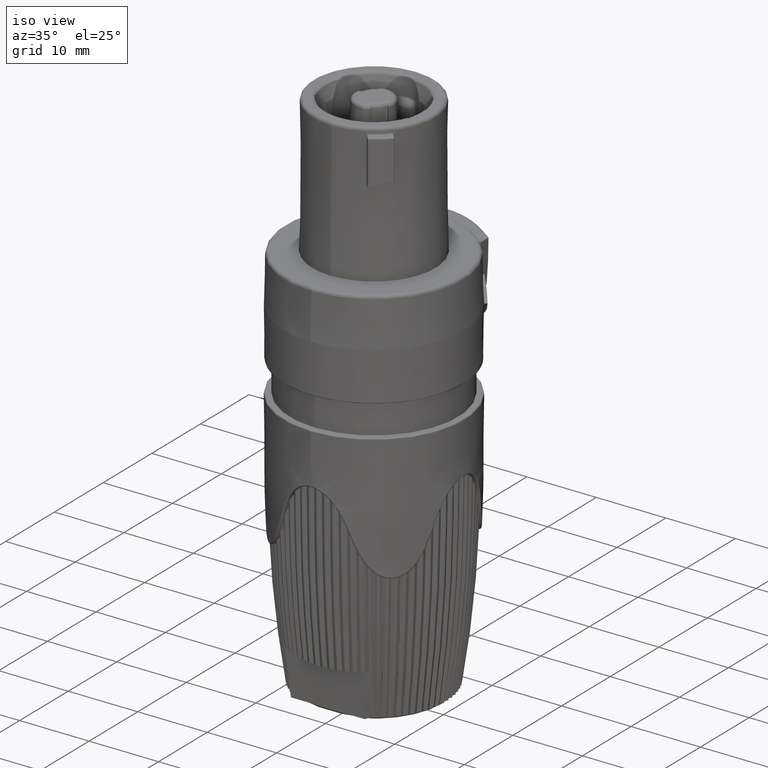
[diagram: clean part render]
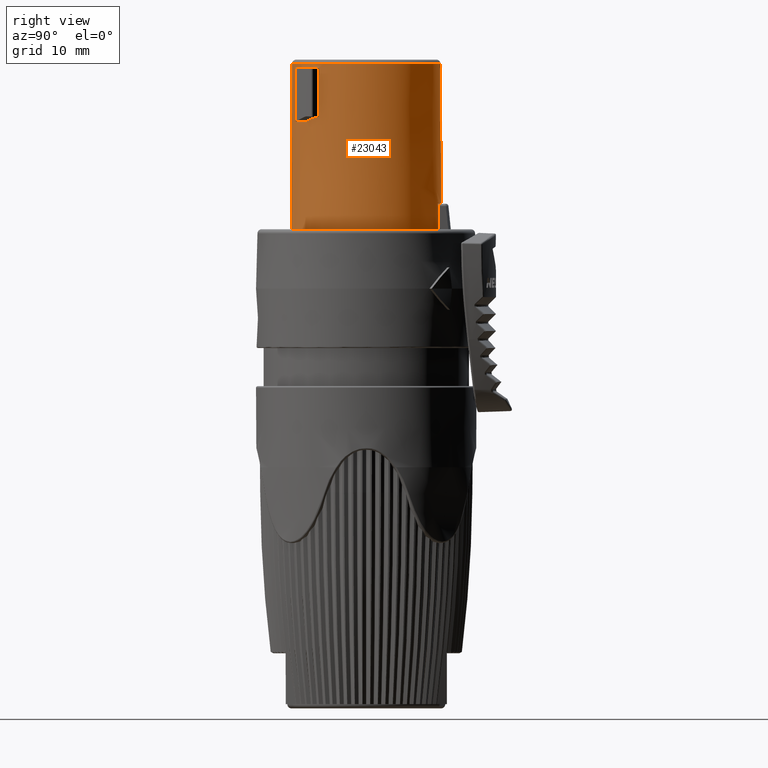
[diagram: tour spotlight — one face highlighted and labeled with its STEP entity id]
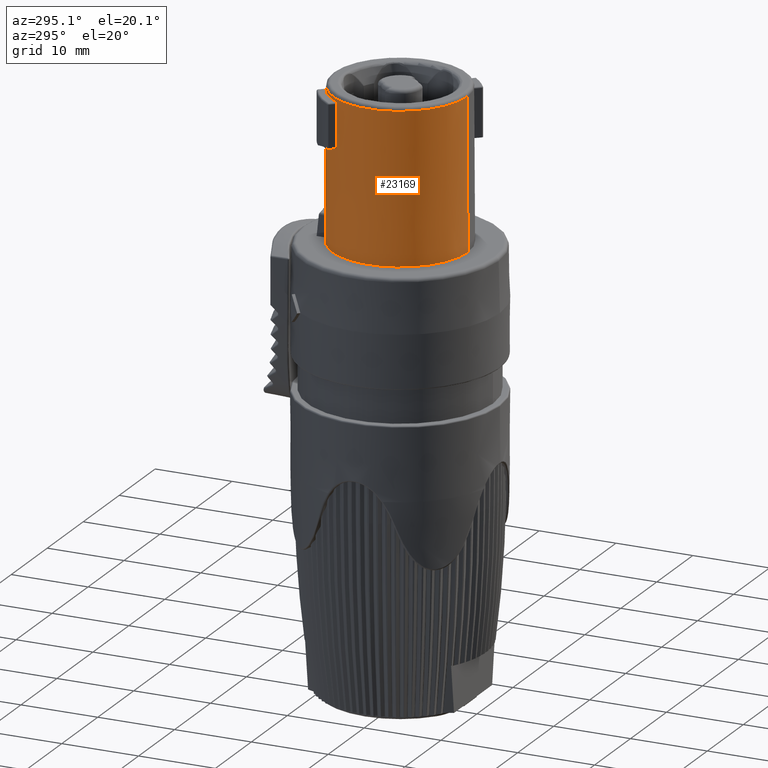
[diagram: tour spotlight — one face highlighted and labeled with its STEP entity id]
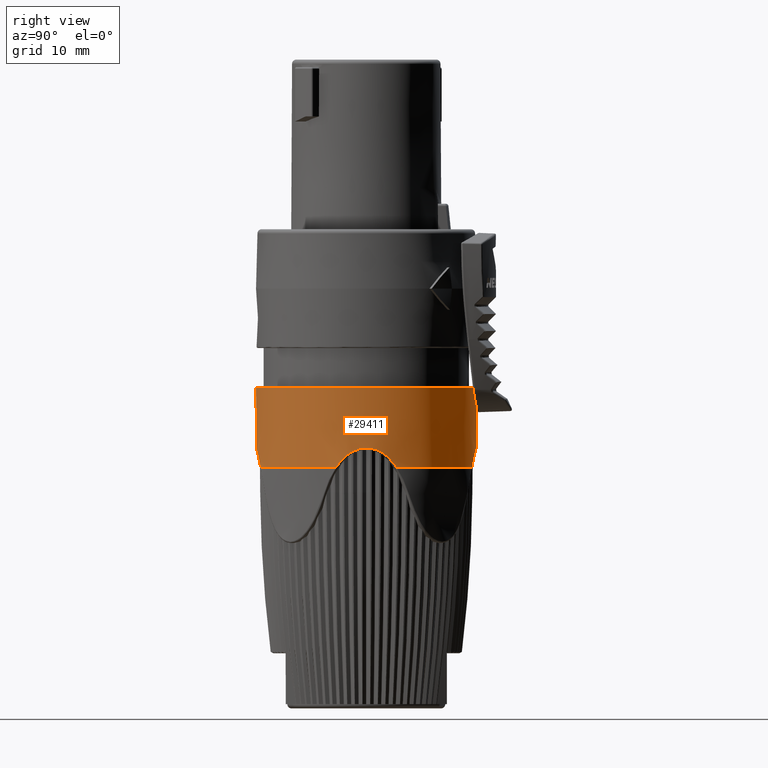
[diagram: tour spotlight — one face highlighted and labeled with its STEP entity id]
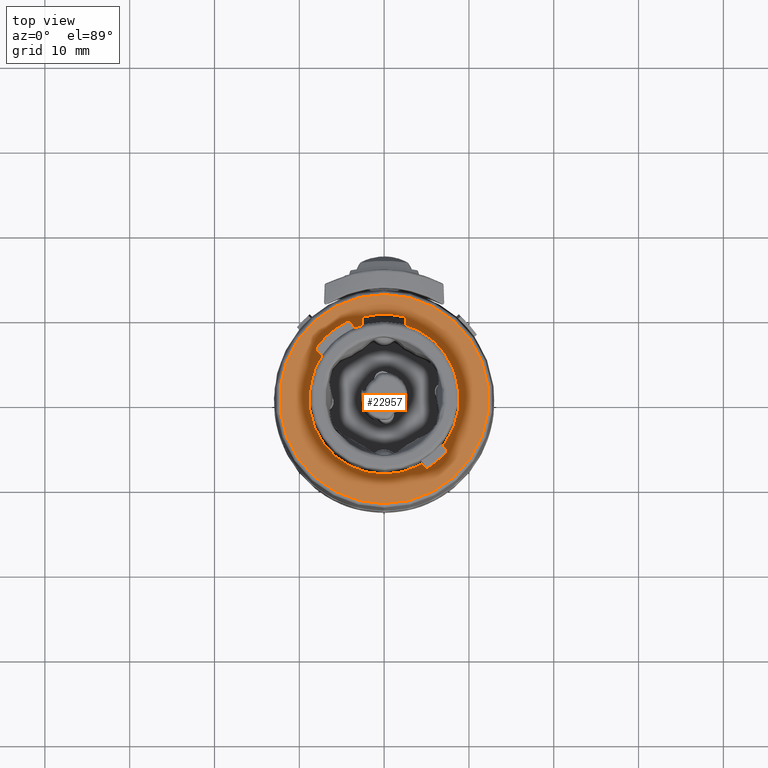
[diagram: tour spotlight — one face highlighted and labeled with its STEP entity id]
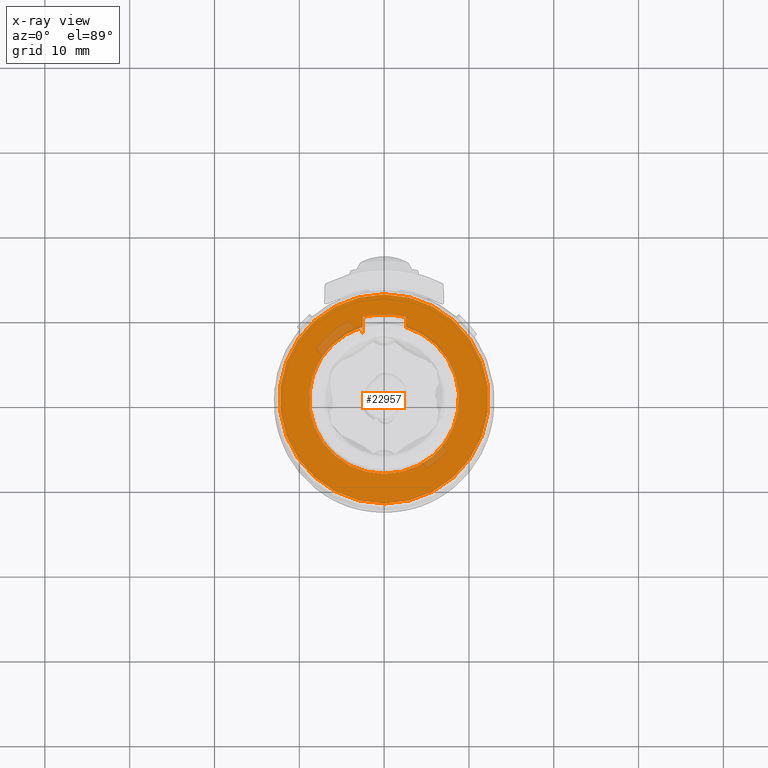
[diagram: x-ray of the same camera — body ghosted, this tour face saturated]
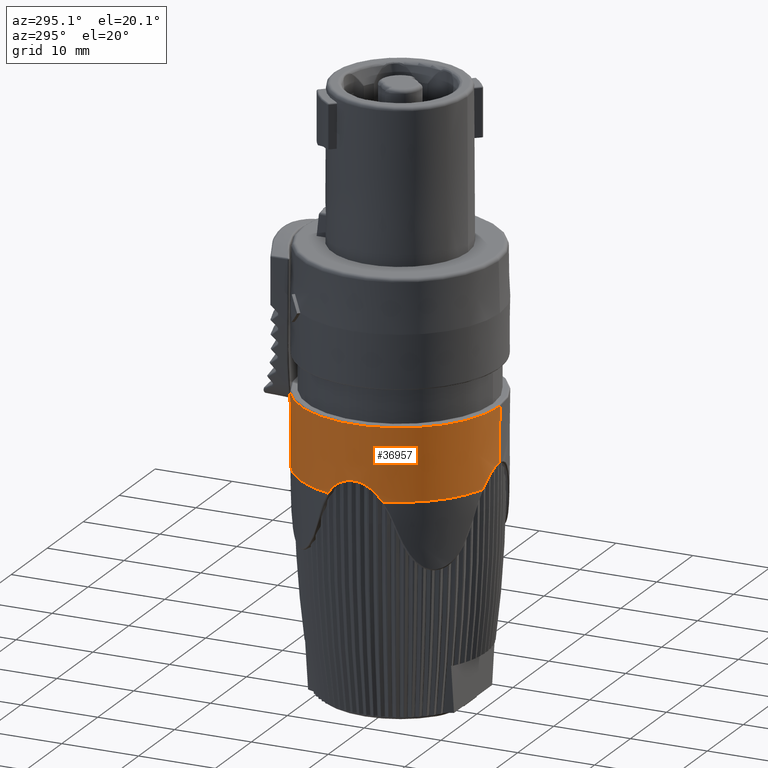
[diagram: tour spotlight — one face highlighted and labeled with its STEP entity id]
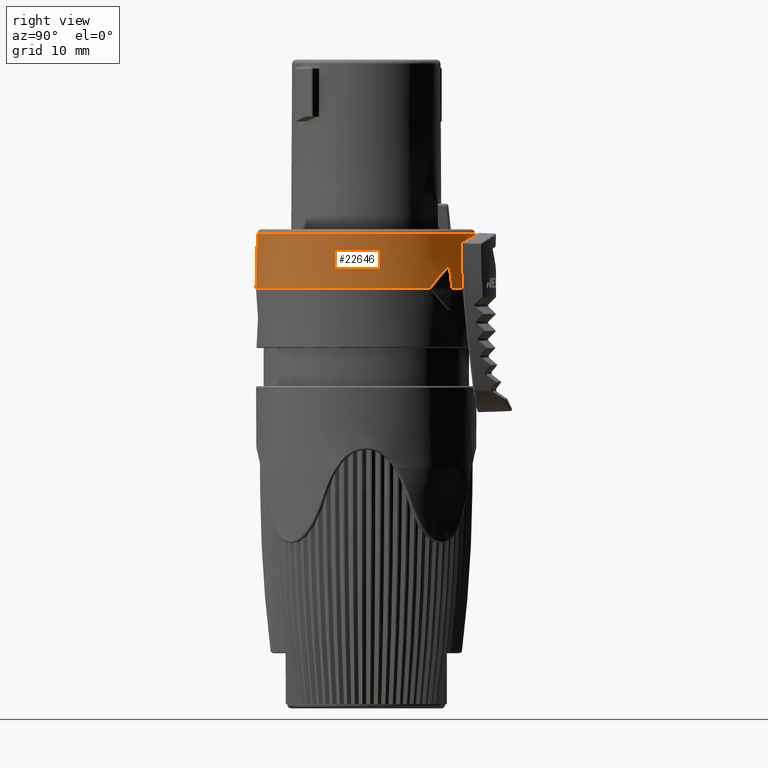
[diagram: tour spotlight — one face highlighted and labeled with its STEP entity id]
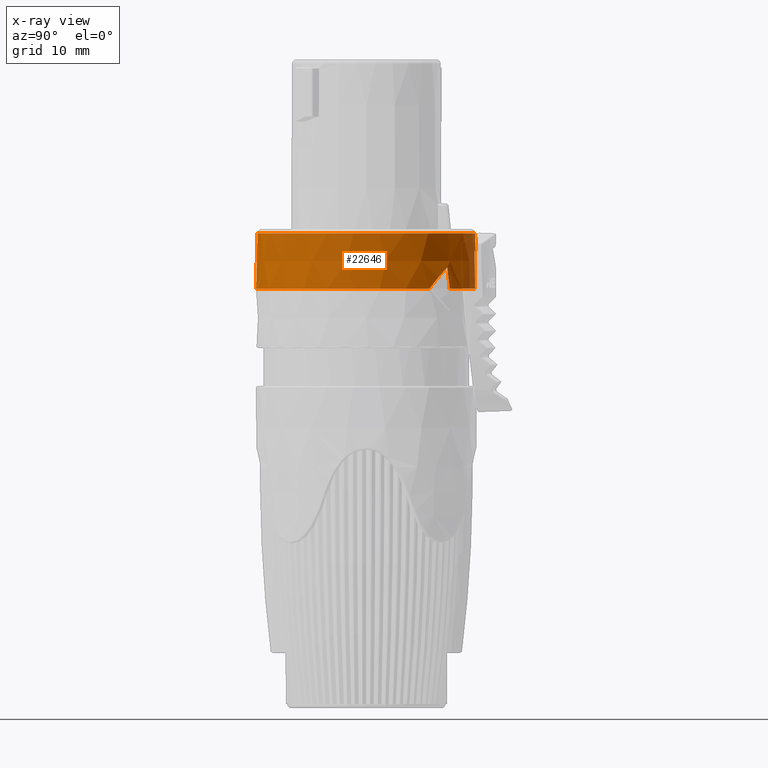
[diagram: x-ray of the same camera — body ghosted, this tour face saturated]
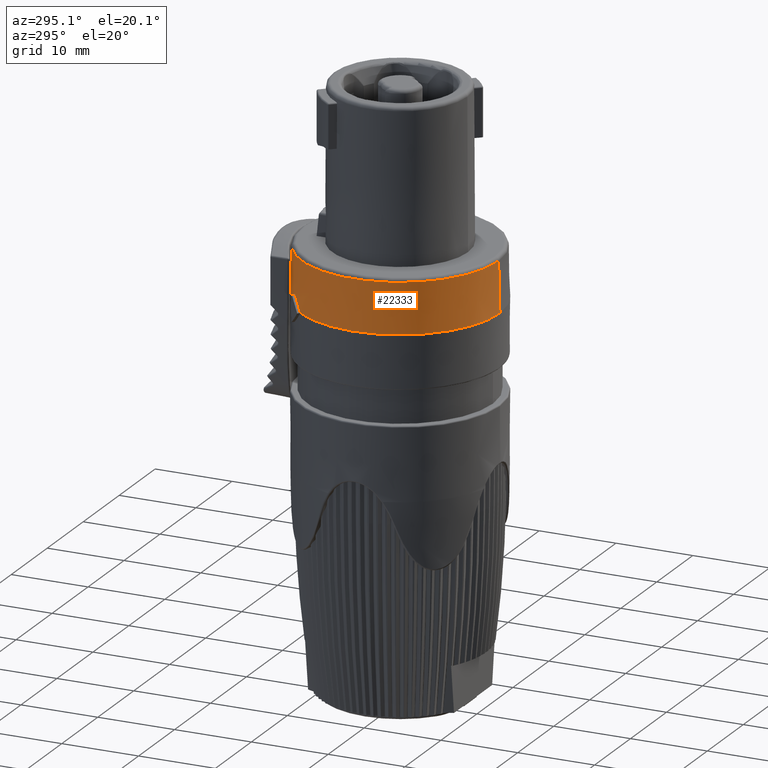
[diagram: tour spotlight — one face highlighted and labeled with its STEP entity id]
A machine part: a face-by-face anatomy tour. The part has 954 B-rep faces; the first image is the clean iso view, then the 7 largest visible faces are spotlighted one at a time (largest first), each with its STEP entity span.

Face 1 — right view, entity #23043. In plain terms, the highlighted conical surface has half-angle 0.291 deg.
Definition (entity closure, byte-faithful):
#3641=CARTESIAN_POINT('',(2.6E0,8.442469314720E0,1.65E1));
#3642=CARTESIAN_POINT('',(2.6E0,8.447780040289E0,1.550000000230E1));
#3643=CARTESIAN_POINT('',(2.6E0,8.453090331777E0,1.450000000230E1));
#3644=CARTESIAN_POINT('',(2.6E0,8.458400191631E0,1.35E1));
#3650=CARTESIAN_POINT('',(6.776809895754E0,-5.585982544381E0,2.679981907153E1));
#3651=CARTESIAN_POINT('',(6.618129315635E0,-5.778924752590E0,2.674206406361E1));
#3652=CARTESIAN_POINT('',(6.286181890595E0,-6.147852838611E0,2.662097939939E1));
#3653=CARTESIAN_POINT('',(5.733731302180E0,-6.668367095667E0,2.642001251746E1));
#3654=CARTESIAN_POINT('',(5.336189175650E0,-6.982216441661E0,2.627529486361E1));
#3655=CARTESIAN_POINT('',(5.129318238067E0,-7.131479158159E0,2.62E1));
#3657=CARTESIAN_POINT('',(0.E0,0.E0,1.35E1));
#3658=DIRECTION('',(0.E0,0.E0,-1.E0));
#3659=DIRECTION('',(2.938190118636E-1,9.558610716352E-1,0.E0));
#3660=AXIS2_PLACEMENT_3D('',#3657,#3658,#3659);
#3684=CARTESIAN_POINT('',(0.E0,0.E0,2.62E1));
#3685=DIRECTION('',(0.E0,0.E0,1.E0));
#3686=DIRECTION('',(4.925094846230E-1,-8.703070765864E-1,0.E0));
#3687=AXIS2_PLACEMENT_3D('',#3684,#3685,#3686);
#3734=DIRECTION('',(0.E0,-5.075422946028E-3,9.999871199580E-1));
#3735=VECTOR('',#3734,1.650275026759E1);
#3736=CARTESIAN_POINT('',(0.E0,8.833758437381E0,1.65E1));
#3737=LINE('',#3736,#3735);
#3738=DIRECTION('',(0.E0,5.075422946028E-3,9.999871199580E-1));
#3739=VECTOR('',#3738,1.950278890821E1);
#3740=CARTESIAN_POINT('',(0.E0,-8.848984902336E0,1.35E1));
#3741=LINE('',#3740,#3739);
#3801=CARTESIAN_POINT('',(0.E0,0.E0,3.26E1));
#3802=DIRECTION('',(0.E0,0.E0,1.E0));
#3803=DIRECTION('',(5.119722928468E-1,-8.590019623710E-1,0.E0));
#3804=AXIS2_PLACEMENT_3D('',#3801,#3802,#3803);
#3881=DIRECTION('',(3.318121349698E-3,-3.954383039165E-3,-9.999866763740E-1));
#3882=VECTOR('',#3881,6.200082607582E0);
#3883=CARTESIAN_POINT('',(4.305889845289E0,-7.620717815415E0,3.24E1));
#3884=LINE('',#3883,#3882);
#3898=CARTESIAN_POINT('',(4.305889845289E0,-7.620717815415E0,3.24E1));
#3899=CARTESIAN_POINT('',(4.305803914907E0,-7.620615407574E0,3.242589535112E1));
#3900=CARTESIAN_POINT('',(4.314669681734E0,-7.615313534638E0,3.247782858590E1));
#3901=CARTESIAN_POINT('',(4.353304090900E0,-7.592959566458E0,3.254438257458E1));
#3902=CARTESIAN_POINT('',(4.411801168961E0,-7.558906254516E0,3.258940107816E1));
#3903=CARTESIAN_POINT('',(4.457772823970E0,-7.531756349842E0,3.26E1));
#3904=CARTESIAN_POINT('',(4.480805100291E0,-7.518028933590E0,3.26E1));
#3911=DIRECTION('',(3.495879772847E-3,-3.961438140065E-3,-9.999860428188E-1));
#3912=VECTOR('',#3911,5.600259092305E0);
#3913=CARTESIAN_POINT('',(6.757232063270E0,-5.563797464418E0,3.24E1));
#3914=LINE('',#3913,#3912);
#3923=CARTESIAN_POINT('',(6.625729541024E0,-5.718223626468E0,3.26E1));
#3924=CARTESIAN_POINT('',(6.643247919788E0,-5.697925002994E0,3.26E1));
#3925=CARTESIAN_POINT('',(6.677968250521E0,-5.657366292193E0,3.258940107816E1));
#3926=CARTESIAN_POINT('',(6.721662127141E0,-5.605671211752E0,3.254438257458E1));
#3927=CARTESIAN_POINT('',(6.750385283063E0,-5.571505471911E0,3.247782858590E1));
#3928=CARTESIAN_POINT('',(6.757146132888E0,-5.563695056577E0,3.242589535112E1));
#3929=CARTESIAN_POINT('',(6.757232063270E0,-5.563797464418E0,3.24E1));
#4002=CARTESIAN_POINT('',(0.E0,0.E0,3.300253771147E1));
#4003=DIRECTION('',(0.E0,0.E0,-1.E0));
#4004=DIRECTION('',(0.E0,1.E0,0.E0));
#4005=AXIS2_PLACEMENT_3D('',#4002,#4003,#4004);
#6671=CARTESIAN_POINT('',(0.E0,0.E0,1.65E1));
#6672=DIRECTION('',(0.E0,0.E0,-1.E0));
#6673=DIRECTION('',(2.547047234707E-1,9.670188746047E-1,0.E0));
#6674=AXIS2_PLACEMENT_3D('',#6671,#6672,#6673);
#6709=CARTESIAN_POINT('',(0.E0,0.E0,1.65E1));
#6710=DIRECTION('',(0.E0,0.E0,-1.E0));
#6711=DIRECTION('',(0.E0,1.E0,0.E0));
#6712=AXIS2_PLACEMENT_3D('',#6709,#6710,#6711);
#16485=CARTESIAN_POINT('',(0.E0,8.75E0,3.300253771147E1));
#16487=VERTEX_POINT('',#16485);
#16489=CARTESIAN_POINT('',(0.E0,-8.75E0,3.300253771147E1));
#16491=VERTEX_POINT('',#16489);
#16497=CARTESIAN_POINT('',(2.6E0,8.442469314720E0,1.65E1));
#16498=VERTEX_POINT('',#16497);
#16517=CARTESIAN_POINT('',(4.305889845289E0,-7.620717815415E0,3.24E1));
#16518=CARTESIAN_POINT('',(4.326462471760E0,-7.645235316920E0,2.62E1));
#16519=VERTEX_POINT('',#16517);
#16520=VERTEX_POINT('',#16518);
#16531=CARTESIAN_POINT('',(6.625729541024E0,-5.718223626468E0,3.26E1));
#16532=VERTEX_POINT('',#16531);
#16534=CARTESIAN_POINT('',(6.757232063270E0,-5.563797464418E0,3.24E1));
#16536=VERTEX_POINT('',#16534);
#16537=CARTESIAN_POINT('',(4.480805100291E0,-7.518028933590E0,3.26E1));
#16538=VERTEX_POINT('',#16537);
#16564=CARTESIAN_POINT('',(5.129318238067E0,-7.131479158159E0,2.62E1));
#16566=VERTEX_POINT('',#16564);
#16573=CARTESIAN_POINT('',(6.776809895754E0,-5.585982544381E0,
2.679981907153E1));
#16574=VERTEX_POINT('',#16573);
#16848=CARTESIAN_POINT('',(2.6E0,8.458400191631E0,1.35E1));
#16849=CARTESIAN_POINT('',(0.E0,-8.848984902336E0,1.35E1));
#16850=VERTEX_POINT('',#16848);
#16851=VERTEX_POINT('',#16849);
#17017=CARTESIAN_POINT('',(0.E0,8.833758437381E0,1.65E1));
#17018=CARTESIAN_POINT('',(2.25E0,8.542411142646E0,1.65E1));
#17019=VERTEX_POINT('',#17017);
#17020=VERTEX_POINT('',#17018);
#23008=CARTESIAN_POINT('',(0.E0,0.E0,2.325126885574E1));
#23009=DIRECTION('',(0.E0,0.E0,-1.E0));
#23010=DIRECTION('',(0.E0,-1.E0,0.E0));
#23011=AXIS2_PLACEMENT_3D('',#23008,#23009,#23010);
#23012=CONICAL_SURFACE('',#23011,8.799492451168E0,2.908015625645E-1);
#23014=ORIENTED_EDGE('',*,*,#23013,.T.);
#23015=ORIENTED_EDGE('',*,*,#23000,.T.);
#23016=ORIENTED_EDGE('',*,*,#22949,.T.);
#23018=ORIENTED_EDGE('',*,*,#23017,.T.);
#23020=ORIENTED_EDGE('',*,*,#23019,.F.);
#23022=ORIENTED_EDGE('',*,*,#23021,.F.);
#23024=ORIENTED_EDGE('',*,*,#23023,.T.);
#23025=EDGE_LOOP('',(#23014,#23015,#23016,#23018,#23020,#23022,#23024));
#23026=FACE_OUTER_BOUND('',#23025,.F.);
#23028=ORIENTED_EDGE('',*,*,#23027,.T.);
#23030=ORIENTED_EDGE('',*,*,#23029,.F.);
#23032=ORIENTED_EDGE('',*,*,#23031,.F.);
#23034=ORIENTED_EDGE('',*,*,#23033,.F.);
#23036=ORIENTED_EDGE('',*,*,#23035,.F.);
#23038=ORIENTED_EDGE('',*,*,#23037,.F.);
#23040=ORIENTED_EDGE('',*,*,#23039,.T.);
#23041=EDGE_LOOP('',(#23028,#23030,#23032,#23034,#23036,#23038,#23040));
#23042=FACE_BOUND('',#23041,.F.);
#23043=ADVANCED_FACE('',(#23026,#23042),#23012,.T.);
#3645=B_SPLINE_CURVE_WITH_KNOTS('',3,(#3641,#3642,#3643,#3644),.UNSPECIFIED.,
.F.,.F.,(4,4),(0.E0,1.E0),.UNSPECIFIED.);
#3656=B_SPLINE_CURVE_WITH_KNOTS('',3,(#3650,#3651,#3652,#3653,#3654,#3655),
.UNSPECIFIED.,.F.,.F.,(4,1,1,4),(0.E0,3.333333333333E-1,6.666666666667E-1,1.E0),
.UNSPECIFIED.);
#3661=CIRCLE('',#3660,8.848984902336E0);
#3688=CIRCLE('',#3687,8.784526200691E0);
#3805=CIRCLE('',#3804,8.752043075452E0);
#3905=B_SPLINE_CURVE_WITH_KNOTS('',3,(#3898,#3899,#3900,#3901,#3902,#3903,
#3904),.UNSPECIFIED.,.F.,.F.,(4,1,1,1,4),(0.E0,2.5E-1,5.E-1,7.5E-1,1.E0),
.UNSPECIFIED.);
#3930=B_SPLINE_CURVE_WITH_KNOTS('',3,(#3923,#3924,#3925,#3926,#3927,#3928,
#3929),.UNSPECIFIED.,.F.,.F.,(4,1,1,1,4),(0.E0,2.5E-1,5.E-1,7.5E-1,1.E0),
.UNSPECIFIED.);
#4006=CIRCLE('',#4005,8.75E0);
#6675=CIRCLE('',#6674,8.833758437381E0);
#6713=CIRCLE('',#6712,8.833758437381E0);
#22949=EDGE_CURVE('',#16850,#16851,#3661,.T.);
#23000=EDGE_CURVE('',#16498,#16850,#3645,.T.);
#23013=EDGE_CURVE('',#17020,#16498,#6675,.T.);
#23017=EDGE_CURVE('',#16851,#16491,#3741,.T.);
#23019=EDGE_CURVE('',#16487,#16491,#4006,.T.);
#23021=EDGE_CURVE('',#17019,#16487,#3737,.T.);
#23023=EDGE_CURVE('',#17019,#17020,#6713,.T.);
#23027=EDGE_CURVE('',#16520,#16566,#3688,.T.);
#23029=EDGE_CURVE('',#16574,#16566,#3656,.T.);
#23031=EDGE_CURVE('',#16536,#16574,#3914,.T.);
#23033=EDGE_CURVE('',#16532,#16536,#3930,.T.);
#23035=EDGE_CURVE('',#16538,#16532,#3805,.T.);
#23037=EDGE_CURVE('',#16519,#16538,#3905,.T.);
#23039=EDGE_CURVE('',#16519,#16520,#3884,.T.);

Face 2 — auxiliary view, entity #23169. In plain terms, the highlighted conical surface has half-angle 0.291 deg.
Definition (entity closure, byte-faithful):
#3666=CARTESIAN_POINT('',(0.E0,0.E0,2.62E1));
#3667=DIRECTION('',(0.E0,0.E0,1.E0));
#3668=DIRECTION('',(-3.927398879093E-1,9.196495965557E-1,0.E0));
#3669=AXIS2_PLACEMENT_3D('',#3666,#3667,#3668);
#3720=CARTESIAN_POINT('',(-3.428892919336E0,8.053491213733E0,3.24E1));
#3721=CARTESIAN_POINT('',(-3.431240202368E0,8.056288596720E0,3.171172622262E1));
#3722=CARTESIAN_POINT('',(-3.435935906306E0,8.061884718757E0,3.033476859299E1));
#3723=CARTESIAN_POINT('',(-3.442982877652E0,8.070282972176E0,2.826810188013E1));
#3724=CARTESIAN_POINT('',(-3.447683136319E0,8.075884522329E0,2.688950398014E1));
#3725=CARTESIAN_POINT('',(-3.450033835395E0,8.078685976398E0,2.62E1));
#3727=CARTESIAN_POINT('',(-7.355838334297E0,4.797933164571E0,2.679981409722E1));
#3728=CARTESIAN_POINT('',(-7.205157052388E0,5.029419150590E0,2.674497059574E1));
#3729=CARTESIAN_POINT('',(-6.884075694603E0,5.473864086215E0,2.662783354308E1));
#3730=CARTESIAN_POINT('',(-6.331155681388E0,6.107583216323E0,2.642669879638E1));
#3731=CARTESIAN_POINT('',(-5.923189376148E0,6.492828504059E0,2.627818638690E1));
#3732=CARTESIAN_POINT('',(-5.708374043629E0,6.677002796813E0,2.62E1));
#3734=DIRECTION('',(0.E0,-5.075422946028E-3,9.999871199580E-1));
#3735=VECTOR('',#3734,1.650275026759E1);
#3736=CARTESIAN_POINT('',(0.E0,8.833758437381E0,1.65E1));
#3737=LINE('',#3736,#3735);
#3738=DIRECTION('',(0.E0,5.075422946028E-3,9.999871199580E-1));
#3739=VECTOR('',#3738,1.950278890821E1);
#3740=CARTESIAN_POINT('',(0.E0,-8.848984902336E0,1.35E1));
#3741=LINE('',#3740,#3739);
#3742=CARTESIAN_POINT('',(0.E0,0.E0,1.35E1));
#3743=DIRECTION('',(0.E0,0.E0,-1.E0));
#3744=DIRECTION('',(0.E0,-1.E0,0.E0));
#3745=AXIS2_PLACEMENT_3D('',#3742,#3743,#3744);
#3747=CARTESIAN_POINT('',(-2.6E0,8.458400191631E0,1.35E1));
#3748=CARTESIAN_POINT('',(-2.6E0,8.453090331777E0,1.450000000230E1));
#3749=CARTESIAN_POINT('',(-2.6E0,8.447780040289E0,1.550000000230E1));
#3750=CARTESIAN_POINT('',(-2.6E0,8.442469314720E0,1.65E1));
#3752=CARTESIAN_POINT('',(-7.335719579243E0,4.775274404332E0,3.24E1));
#3753=CARTESIAN_POINT('',(-7.337860597777E0,4.777825970862E0,3.177220740162E1));
#3754=CARTESIAN_POINT('',(-7.342266208582E0,4.782900661583E0,3.052031151648E1));
#3755=CARTESIAN_POINT('',(-7.348017103658E0,4.790545014476E0,2.865380038987E1));
#3756=CARTESIAN_POINT('',(-7.353735874354E0,4.795427550381E0,2.741648524078E1));
#3757=CARTESIAN_POINT('',(-7.355838334297E0,4.797933164571E0,2.679981409722E1));
#3806=CARTESIAN_POINT('',(0.E0,0.E0,3.26E1));
#3807=DIRECTION('',(0.E0,0.E0,1.E0));
#3808=DIRECTION('',(-4.134941877143E-1,9.105067581992E-1,0.E0));
#3809=AXIS2_PLACEMENT_3D('',#3806,#3807,#3808);
#3944=CARTESIAN_POINT('',(-7.219326602823E0,4.947707421904E0,3.26E1));
#3945=CARTESIAN_POINT('',(-7.235160014542E0,4.924604464901E0,3.26E1));
#3946=CARTESIAN_POINT('',(-7.266236780990E0,4.878827688742E0,3.258905952734E1));
#3947=CARTESIAN_POINT('',(-7.304958641666E0,4.820999037624E0,3.254316367639E1));
#3948=CARTESIAN_POINT('',(-7.329839338211E0,4.783609572637E0,3.247669666501E1));
#3949=CARTESIAN_POINT('',(-7.335632822079E0,4.775171011171E0,3.242543906283E1));
#3950=CARTESIAN_POINT('',(-7.335719579243E0,4.775274404332E0,3.24E1));
#3974=CARTESIAN_POINT('',(-3.428892919336E0,8.053491213733E0,3.24E1));
#3975=CARTESIAN_POINT('',(-3.428806162173E0,8.053387820572E0,3.242543906283E1));
#3976=CARTESIAN_POINT('',(-3.438122550845E0,8.049147693562E0,3.247669666501E1));
#3977=CARTESIAN_POINT('',(-3.479264473459E0,8.031137603164E0,3.254316367639E1));
#3978=CARTESIAN_POINT('',(-3.542938557969E0,8.003045854442E0,3.258905952734E1));
#3979=CARTESIAN_POINT('',(-3.593416305900E0,7.980390267665E0,3.26E1));
#3980=CARTESIAN_POINT('',(-3.618917720164E0,7.968809187431E0,3.26E1));
#3997=CARTESIAN_POINT('',(0.E0,0.E0,3.300253771147E1));
#3998=DIRECTION('',(0.E0,0.E0,1.E0));
#3999=DIRECTION('',(0.E0,1.E0,0.E0));
#4000=AXIS2_PLACEMENT_3D('',#3997,#3998,#3999);
#6654=CARTESIAN_POINT('',(0.E0,0.E0,1.65E1));
#6655=DIRECTION('',(0.E0,0.E0,-1.E0));
#6656=DIRECTION('',(-2.943254582328E-1,9.557052498736E-1,0.E0));
#6657=AXIS2_PLACEMENT_3D('',#6654,#6655,#6656);
#6714=CARTESIAN_POINT('',(0.E0,0.E0,1.65E1));
#6715=DIRECTION('',(0.E0,0.E0,-1.E0));
#6716=DIRECTION('',(-2.547047234707E-1,9.670188746047E-1,0.E0));
#6717=AXIS2_PLACEMENT_3D('',#6714,#6715,#6716);
#16485=CARTESIAN_POINT('',(0.E0,8.75E0,3.300253771147E1));
#16487=VERTEX_POINT('',#16485);
#16489=CARTESIAN_POINT('',(0.E0,-8.75E0,3.300253771147E1));
#16491=VERTEX_POINT('',#16489);
#16499=CARTESIAN_POINT('',(-2.6E0,8.442469314720E0,1.65E1));
#16500=VERTEX_POINT('',#16499);
#16521=VERTEX_POINT('',#3720);
#16522=VERTEX_POINT('',#3725);
#16540=CARTESIAN_POINT('',(-7.219326602823E0,4.947707421904E0,3.26E1));
#16542=VERTEX_POINT('',#16540);
#16544=CARTESIAN_POINT('',(-7.335719579243E0,4.775274404332E0,3.24E1));
#16546=VERTEX_POINT('',#16544);
#16551=CARTESIAN_POINT('',(-3.618917720164E0,7.968809187431E0,3.26E1));
#16552=VERTEX_POINT('',#16551);
#16554=CARTESIAN_POINT('',(-5.708374043629E0,6.677002796813E0,2.62E1));
#16556=VERTEX_POINT('',#16554);
#16562=VERTEX_POINT('',#3757);
#16849=CARTESIAN_POINT('',(0.E0,-8.848984902336E0,1.35E1));
#16851=VERTEX_POINT('',#16849);
#16852=CARTESIAN_POINT('',(-2.6E0,8.458400191631E0,1.35E1));
#16853=VERTEX_POINT('',#16852);
#17017=CARTESIAN_POINT('',(0.E0,8.833758437381E0,1.65E1));
#17019=VERTEX_POINT('',#17017);
#17021=CARTESIAN_POINT('',(-2.25E0,8.542411142646E0,1.65E1));
#17022=VERTEX_POINT('',#17021);
#23138=CARTESIAN_POINT('',(0.E0,0.E0,2.325126885574E1));
#23139=DIRECTION('',(0.E0,0.E0,-1.E0));
#23140=DIRECTION('',(0.E0,-1.E0,0.E0));
#23141=AXIS2_PLACEMENT_3D('',#23138,#23139,#23140);
#23142=CONICAL_SURFACE('',#23141,8.799492451168E0,2.908015625645E-1);
#23143=ORIENTED_EDGE('',*,*,#23021,.T.);
#23145=ORIENTED_EDGE('',*,*,#23144,.T.);
#23146=ORIENTED_EDGE('',*,*,#23017,.F.);
#23147=ORIENTED_EDGE('',*,*,#22947,.T.);
#23149=ORIENTED_EDGE('',*,*,#23148,.T.);
#23151=ORIENTED_EDGE('',*,*,#23150,.T.);
#23153=ORIENTED_EDGE('',*,*,#23152,.T.);
#23154=EDGE_LOOP('',(#23143,#23145,#23146,#23147,#23149,#23151,#23153));
#23155=FACE_OUTER_BOUND('',#23154,.F.);
#23156=ORIENTED_EDGE('',*,*,#23051,.T.);
#23157=ORIENTED_EDGE('',*,*,#23087,.F.);
#23159=ORIENTED_EDGE('',*,*,#23158,.F.);
#23161=ORIENTED_EDGE('',*,*,#23160,.F.);
#23163=ORIENTED_EDGE('',*,*,#23162,.F.);
#23165=ORIENTED_EDGE('',*,*,#23164,.F.);
#23166=ORIENTED_EDGE('',*,*,#23131,.T.);
#23167=EDGE_LOOP('',(#23156,#23157,#23159,#23161,#23163,#23165,#23166));
#23168=FACE_BOUND('',#23167,.F.);
#23169=ADVANCED_FACE('',(#23155,#23168),#23142,.T.);
#3670=CIRCLE('',#3669,8.784526200691E0);
#3726=B_SPLINE_CURVE_WITH_KNOTS('',3,(#3720,#3721,#3722,#3723,#3724,#3725),
.UNSPECIFIED.,.F.,.F.,(4,1,1,4),(0.E0,3.333333333333E-1,6.666666666667E-1,1.E0),
.UNSPECIFIED.);
#3733=B_SPLINE_CURVE_WITH_KNOTS('',3,(#3727,#3728,#3729,#3730,#3731,#3732),
.UNSPECIFIED.,.F.,.F.,(4,1,1,4),(0.E0,3.333333333333E-1,6.666666666667E-1,1.E0),
.UNSPECIFIED.);
#3746=CIRCLE('',#3745,8.848984902336E0);
#3751=B_SPLINE_CURVE_WITH_KNOTS('',3,(#3747,#3748,#3749,#3750),.UNSPECIFIED.,
.F.,.F.,(4,4),(0.E0,1.E0),.UNSPECIFIED.);
#3758=B_SPLINE_CURVE_WITH_KNOTS('',3,(#3752,#3753,#3754,#3755,#3756,#3757),
.UNSPECIFIED.,.F.,.F.,(4,1,1,4),(0.E0,3.333333333333E-1,6.666666666667E-1,1.E0),
.UNSPECIFIED.);
#3810=CIRCLE('',#3809,8.752043075452E0);
#3951=B_SPLINE_CURVE_WITH_KNOTS('',3,(#3944,#3945,#3946,#3947,#3948,#3949,
#3950),.UNSPECIFIED.,.F.,.F.,(4,1,1,1,4),(0.E0,2.5E-1,5.E-1,7.5E-1,1.E0),
.UNSPECIFIED.);
#3981=B_SPLINE_CURVE_WITH_KNOTS('',3,(#3974,#3975,#3976,#3977,#3978,#3979,
#3980),.UNSPECIFIED.,.F.,.F.,(4,1,1,1,4),(0.E0,2.5E-1,5.E-1,7.5E-1,1.E0),
.UNSPECIFIED.);
#4001=CIRCLE('',#4000,8.75E0);
#6658=CIRCLE('',#6657,8.833758437381E0);
#6718=CIRCLE('',#6717,8.833758437381E0);
#22947=EDGE_CURVE('',#16851,#16853,#3746,.T.);
#23017=EDGE_CURVE('',#16851,#16491,#3741,.T.);
#23021=EDGE_CURVE('',#17019,#16487,#3737,.T.);
#23051=EDGE_CURVE('',#16522,#16556,#3670,.T.);
#23087=EDGE_CURVE('',#16562,#16556,#3733,.T.);
#23131=EDGE_CURVE('',#16521,#16522,#3726,.T.);
#23144=EDGE_CURVE('',#16487,#16491,#4001,.T.);
#23148=EDGE_CURVE('',#16853,#16500,#3751,.T.);
#23150=EDGE_CURVE('',#16500,#17022,#6658,.T.);
#23152=EDGE_CURVE('',#17022,#17019,#6718,.T.);
#23158=EDGE_CURVE('',#16546,#16562,#3758,.T.);
#23160=EDGE_CURVE('',#16542,#16546,#3951,.T.);
#23162=EDGE_CURVE('',#16552,#16542,#3810,.T.);
#23164=EDGE_CURVE('',#16521,#16552,#3981,.T.);

Face 3 — right view, entity #29411. In plain terms, the highlighted conical surface has half-angle 0.3 deg.
Definition (entity closure, byte-faithful):
#6892=DIRECTION('',(-2.182220450450E-13,5.235910362939E-3,-9.999862925274E-1));
#6893=VECTOR('',#6892,7.100097340029E0);
#6894=CARTESIAN_POINT('',(0.E0,-1.299999725845E1,-5.201047192766E0));
#6895=LINE('',#6894,#6893);
#6896=CARTESIAN_POINT('',(0.E0,0.E0,-5.201047192766E0));
#6897=DIRECTION('',(0.E0,0.E0,-1.E0));
#6898=DIRECTION('',(0.E0,1.E0,0.E0));
#6899=AXIS2_PLACEMENT_3D('',#6896,#6897,#6898);
#6901=DIRECTION('',(2.355620043043E-13,-5.235911862576E-3,-9.999862925195E-1));
#6902=VECTOR('',#6901,7.100097449243E0);
#6903=CARTESIAN_POINT('',(0.E0,1.299999725845E1,-5.201047192766E0));
#6904=LINE('',#6903,#6902);
#6921=CARTESIAN_POINT('',(3.572832342167E0,-1.244841766532E1,
-1.456000000041E1));
#6922=CARTESIAN_POINT('',(3.506986114672E0,-1.246785343934E1,
-1.446144298396E1));
#6923=CARTESIAN_POINT('',(3.373767039594E0,-1.250595707994E1,
-1.427093810891E1));
#6924=CARTESIAN_POINT('',(3.178503482520E0,-1.255840089484E1,
-1.401512449677E1));
#6925=CARTESIAN_POINT('',(2.962537035549E0,-1.261270416753E1,
-1.375749103133E1));
#6926=CARTESIAN_POINT('',(2.700603095656E0,-1.267317274910E1,
-1.348081474107E1));
#6927=CARTESIAN_POINT('',(2.393761628521E0,-1.273659884189E1,
-1.320137915484E1));
#6928=CARTESIAN_POINT('',(2.036697295450E0,-1.280033479478E1,
-1.293019420344E1));
#6929=CARTESIAN_POINT('',(1.669825242600E0,-1.285425329836E1,
-1.271116528822E1));
#6930=CARTESIAN_POINT('',(1.343095620258E0,-1.289300396078E1,
-1.255943379889E1));
#6931=CARTESIAN_POINT('',(1.029683064455E0,-1.292229612493E1,
-1.244697041306E1));
#6932=CARTESIAN_POINT('',(7.283975614654E-1,-1.294322107496E1,
-1.237071474159E1));
#6933=CARTESIAN_POINT('',(3.937479873975E-1,-1.295842468361E1,
-1.231656209263E1));
#6934=CARTESIAN_POINT('',(1.362805415095E-1,-1.296282152428E1,
-1.230104888602E1));
#6935=CARTESIAN_POINT('',(-1.549397761560E-12,-1.296282178521E1,
-1.230104720841E1));
#10927=CARTESIAN_POINT('',(0.E0,0.E0,-1.456E1));
#10928=DIRECTION('',(0.E0,0.E0,-1.E0));
#10929=DIRECTION('',(2.757690174962E-1,9.612239328009E-1,0.E0));
#10930=AXIS2_PLACEMENT_3D('',#10927,#10928,#10929);
#10932=CARTESIAN_POINT('',(0.E0,0.E0,-1.456E1));
#10933=DIRECTION('',(0.E0,0.E0,-1.E0));
#10934=DIRECTION('',(9.612014169115E-1,-2.758474870780E-1,0.E0));
#10935=AXIS2_PLACEMENT_3D('',#10932,#10933,#10934);
#11058=CARTESIAN_POINT('',(1.244812736616E1,3.573844227489E0,
-1.456000000126E1));
#11059=CARTESIAN_POINT('',(1.247924557290E1,3.468459498480E0,
-1.440223632429E1));
#11060=CARTESIAN_POINT('',(1.253841363237E1,3.257687889877E0,
-1.410888573336E1));
#11061=CARTESIAN_POINT('',(1.261688287842E1,2.947544822488E0,
-1.373581935964E1));
#11062=CARTESIAN_POINT('',(1.268664932176E1,2.639018249339E0,
-1.341956773511E1));
#11063=CARTESIAN_POINT('',(1.274670178009E1,2.338791386058E0,
-1.315735431835E1));
#11064=CARTESIAN_POINT('',(1.279749263361E1,2.049403196665E0,
-1.294209928589E1));
#11065=CARTESIAN_POINT('',(1.284009236968E1,1.768609525135E0,
-1.276771356423E1));
#11066=CARTESIAN_POINT('',(1.287299011987E1,1.514874782473E0,
-1.263726338243E1));
#11067=CARTESIAN_POINT('',(1.289869539671E1,1.282023335107E0,
-1.253710561035E1));
#11068=CARTESIAN_POINT('',(1.291918581137E1,1.060155468306E0,
-1.245873994266E1));
#11069=CARTESIAN_POINT('',(1.293582309820E1,8.389997720141E-1,
-1.239727796844E1));
#11070=CARTESIAN_POINT('',(1.294989268725E1,5.929706847895E-1,
-1.234672297691E1));
#11071=CARTESIAN_POINT('',(1.296008733145E1,3.144287463607E-1,
-1.231061913740E1));
#11072=CARTESIAN_POINT('',(1.296284053021E1,1.057703642611E-1,
-1.230089770915E1));
#11073=CARTESIAN_POINT('',(1.296282101362E1,-2.672479938689E-3,
-1.230104268829E1));
#11101=CARTESIAN_POINT('',(1.296282101362E1,-2.672479938689E-3,
-1.230104268829E1));
#11102=CARTESIAN_POINT('',(1.296280856278E1,-4.994757034119E-2,
-1.230182239899E1));
#11103=CARTESIAN_POINT('',(1.296229382856E1,-1.501051775235E-1,
-1.230476458888E1));
#11104=CARTESIAN_POINT('',(1.295892545852E1,-3.333322923578E-1,
-1.231704805071E1));
#11105=CARTESIAN_POINT('',(1.295237224502E1,-5.276615023342E-1,
-1.233938181369E1));
#11106=CARTESIAN_POINT('',(1.294280491811E1,-7.216141520770E-1,
-1.237236124492E1));
#11107=CARTESIAN_POINT('',(1.293115945946E1,-9.026503517822E-1,
-1.241417433801E1));
#11108=CARTESIAN_POINT('',(1.291777151052E1,-1.073858858695E0,
-1.246415654153E1));
#11109=CARTESIAN_POINT('',(1.290262731642E1,-1.239425079666E0,
-1.252232231747E1));
#11110=CARTESIAN_POINT('',(1.288483565814E1,-1.409509157959E0,
-1.259178281463E1));
#11111=CARTESIAN_POINT('',(1.286302369821E1,-1.593348133211E0,
-1.267747396832E1));
#11112=CARTESIAN_POINT('',(1.283565062701E1,-1.797529283524E0,
-1.278679542089E1));
#11113=CARTESIAN_POINT('',(1.280075208985E1,-2.027053533939E0,
-1.292977055303E1));
#11114=CARTESIAN_POINT('',(1.276020840418E1,-2.263462065653E0,
-1.310083886401E1));
#11115=CARTESIAN_POINT('',(1.271288532305E1,-2.510573954321E0,
-1.330564217468E1));
#11116=CARTESIAN_POINT('',(1.265827366348E1,-2.767223791832E0,
-1.354850256611E1));
#11117=CARTESIAN_POINT('',(1.259590429562E1,-3.032265652921E0,
-1.383608527866E1));
#11118=CARTESIAN_POINT('',(1.252693660535E1,-3.298991081663E0,
-1.416730455728E1));
#11119=CARTESIAN_POINT('',(1.247546522343E1,-3.481184938868E0,
-1.442331065932E1));
#11120=CARTESIAN_POINT('',(1.244851342932E1,-3.572499048502E0,
-1.456000000096E1));
#11405=CARTESIAN_POINT('',(1.672513185900E-12,1.296282177399E1,
-1.230104731756E1));
#11406=CARTESIAN_POINT('',(1.343652937533E-1,1.296282137211E1,
-1.230104960486E1));
#11407=CARTESIAN_POINT('',(3.878397443237E-1,1.295855514896E1,
-1.231618497223E1));
#11408=CARTESIAN_POINT('',(7.172457638974E-1,1.294380485673E1,
-1.236891289908E1));
#11409=CARTESIAN_POINT('',(1.010388253669E0,1.292376400030E1,
-1.244197258220E1));
#11410=CARTESIAN_POINT('',(1.314159576194E0,1.289599561599E1,
-1.254834904346E1));
#11411=CARTESIAN_POINT('',(1.635736885727E0,1.285862837621E1,
-1.269461764463E1));
#11412=CARTESIAN_POINT('',(1.989107145780E0,1.280788244752E1,
-1.289984798372E1));
#11413=CARTESIAN_POINT('',(2.345447551723E0,1.274584422480E1,
-1.316254571126E1));
#11414=CARTESIAN_POINT('',(2.663229730410E0,1.268140468486E1,
-1.344513233950E1));
#11415=CARTESIAN_POINT('',(2.943333663951E0,1.261740305360E1,
-1.373694198889E1));
#11416=CARTESIAN_POINT('',(3.166459380301E0,1.256153933450E1,
-1.400162820546E1));
#11417=CARTESIAN_POINT('',(3.366984607573E0,1.250785880933E1,
-1.426328969949E1));
#11418=CARTESIAN_POINT('',(3.503877839475E0,1.246875187827E1,
-1.445881355409E1));
#11419=CARTESIAN_POINT('',(3.571482759659E0,1.244880492863E1,
-1.456000000040E1));
#11456=CARTESIAN_POINT('',(1.672513185900E-12,1.296282177399E1,
-1.230104731756E1));
#15004=CARTESIAN_POINT('',(0.E0,1.299999725845E1,-5.201047192766E0));
#15005=VERTEX_POINT('',#15004);
#15006=CARTESIAN_POINT('',(0.E0,-1.299999725845E1,-5.201047192766E0));
#15007=VERTEX_POINT('',#15006);
#15054=VERTEX_POINT('',#6921);
#15055=VERTEX_POINT('',#6935);
#15067=VERTEX_POINT('',#11456);
#15069=VERTEX_POINT('',#11419);
#15072=VERTEX_POINT('',#11058);
#15073=VERTEX_POINT('',#11073);
#15075=VERTEX_POINT('',#11120);
#29387=CARTESIAN_POINT('',(0.E0,0.E0,-9.880523596383E0));
#29388=DIRECTION('',(0.E0,0.E0,1.E0));
#29389=DIRECTION('',(0.E0,1.E0,0.E0));
#29390=AXIS2_PLACEMENT_3D('',#29387,#29388,#29389);
#29391=CONICAL_SURFACE('',#29390,1.297549535338E1,3.E-1);
#29393=ORIENTED_EDGE('',*,*,#29392,.T.);
#29395=ORIENTED_EDGE('',*,*,#29394,.F.);
#29396=ORIENTED_EDGE('',*,*,#29381,.F.);
#29398=ORIENTED_EDGE('',*,*,#29397,.T.);
#29400=ORIENTED_EDGE('',*,*,#29399,.T.);
#29402=ORIENTED_EDGE('',*,*,#29401,.T.);
#29404=ORIENTED_EDGE('',*,*,#29403,.T.);
#29406=ORIENTED_EDGE('',*,*,#29405,.T.);
#29408=ORIENTED_EDGE('',*,*,#29407,.T.);
#29409=EDGE_LOOP('',(#29393,#29395,#29396,#29398,#29400,#29402,#29404,#29406,
#29408));
#29410=FACE_OUTER_BOUND('',#29409,.F.);
#29411=ADVANCED_FACE('',(#29410),#29391,.T.);
#6900=CIRCLE('',#6899,1.299999725845E1);
#6936=B_SPLINE_CURVE_WITH_KNOTS('',3,(#6921,#6922,#6923,#6924,#6925,#6926,#6927,
#6928,#6929,#6930,#6931,#6932,#6933,#6934,#6935),.UNSPECIFIED.,.F.,.F.,(4,1,1,1,
1,1,1,1,1,1,1,1,4),(0.E0,8.333333333333E-2,1.666666666667E-1,2.5E-1,
3.333333333333E-1,4.166666666667E-1,5.E-1,5.833333333333E-1,6.666666666667E-1,
7.5E-1,8.333333333333E-1,9.166666666667E-1,1.E0),.UNSPECIFIED.);
#10931=CIRCLE('',#10930,1.295099344832E1);
#10936=CIRCLE('',#10935,1.295099344832E1);
#11074=B_SPLINE_CURVE_WITH_KNOTS('',3,(#11058,#11059,#11060,#11061,#11062,
#11063,#11064,#11065,#11066,#11067,#11068,#11069,#11070,#11071,#11072,#11073),
.UNSPECIFIED.,.F.,.F.,(4,1,1,1,1,1,1,1,1,1,1,1,1,4),(0.E0,7.692307692308E-2,
1.538461538462E-1,2.307692307692E-1,3.076923076923E-1,3.846153846154E-1,
4.615384615385E-1,5.384615384615E-1,6.153846153846E-1,6.923076923077E-1,
7.692307692308E-1,8.461538461538E-1,9.230769230769E-1,1.E0),.UNSPECIFIED.);
#11121=B_SPLINE_CURVE_WITH_KNOTS('',3,(#11101,#11102,#11103,#11104,#11105,
#11106,#11107,#11108,#11109,#11110,#11111,#11112,#11113,#11114,#11115,#11116,
#11117,#11118,#11119,#11120),.UNSPECIFIED.,.F.,.F.,(4,1,1,1,1,1,1,1,1,1,1,1,1,1,
1,1,1,4),(0.E0,5.882352941176E-2,1.176470588235E-1,1.764705882353E-1,
2.352941176471E-1,2.941176470588E-1,3.529411764706E-1,4.117647058824E-1,
4.705882352941E-1,5.294117647059E-1,5.882352941176E-1,6.470588235294E-1,
7.058823529412E-1,7.647058823529E-1,8.235294117647E-1,8.823529411765E-1,
9.411764705882E-1,1.E0),.UNSPECIFIED.);
#11420=B_SPLINE_CURVE_WITH_KNOTS('',3,(#11405,#11406,#11407,#11408,#11409,
#11410,#11411,#11412,#11413,#11414,#11415,#11416,#11417,#11418,#11419),
.UNSPECIFIED.,.F.,.F.,(4,1,1,1,1,1,1,1,1,1,1,1,4),(0.E0,8.333333333333E-2,
1.666666666667E-1,2.5E-1,3.333333333333E-1,4.166666666667E-1,5.E-1,
5.833333333333E-1,6.666666666667E-1,7.5E-1,8.333333333333E-1,9.166666666667E-1,
1.E0),.UNSPECIFIED.);
#29381=EDGE_CURVE('',#15005,#15007,#6900,.T.);
#29392=EDGE_CURVE('',#15054,#15055,#6936,.T.);
#29394=EDGE_CURVE('',#15007,#15055,#6895,.T.);
#29397=EDGE_CURVE('',#15005,#15067,#6904,.T.);
#29399=EDGE_CURVE('',#15067,#15069,#11420,.T.);
#29401=EDGE_CURVE('',#15069,#15072,#10931,.T.);
#29403=EDGE_CURVE('',#15072,#15073,#11074,.T.);
#29405=EDGE_CURVE('',#15073,#15075,#11121,.T.);
#29407=EDGE_CURVE('',#15075,#15054,#10936,.T.);

Face 4 — top view, entity #22957. An x-ray twin of the same camera follows (body ghosted, this face saturated) — the face is partly hidden behind the body. In plain terms, the highlighted planar face has unit normal (0, 0, -1).
Definition (entity closure, byte-faithful):
#3607=CARTESIAN_POINT('',(0.E0,0.E0,1.35E1));
#3608=DIRECTION('',(0.E0,0.E0,1.E0));
#3609=DIRECTION('',(0.E0,1.E0,0.E0));
#3610=AXIS2_PLACEMENT_3D('',#3607,#3608,#3609);
#3612=CARTESIAN_POINT('',(0.E0,0.E0,1.35E1));
#3613=DIRECTION('',(0.E0,0.E0,-1.E0));
#3614=DIRECTION('',(0.E0,1.E0,0.E0));
#3615=AXIS2_PLACEMENT_3D('',#3612,#3613,#3614);
#3621=DIRECTION('',(0.E0,1.E0,0.E0));
#3622=VECTOR('',#3621,1.919410530120E0);
#3623=CARTESIAN_POINT('',(2.55E0,7.75E0,1.35E1));
#3624=LINE('',#3623,#3622);
#3625=DIRECTION('',(1.E0,0.E0,0.E0));
#3626=VECTOR('',#3625,5.E-2);
#3627=CARTESIAN_POINT('',(2.55E0,7.75E0,1.35E1));
#3628=LINE('',#3627,#3626);
#3633=DIRECTION('',(1.E0,0.E0,0.E0));
#3634=VECTOR('',#3633,5.E-2);
#3635=CARTESIAN_POINT('',(-2.6E0,7.75E0,1.35E1));
#3636=LINE('',#3635,#3634);
#3637=DIRECTION('',(0.E0,1.E0,0.E0));
#3638=VECTOR('',#3637,7.084001916305E-1);
#3639=CARTESIAN_POINT('',(2.6E0,7.75E0,1.35E1));
#3640=LINE('',#3639,#3638);
#3657=CARTESIAN_POINT('',(0.E0,0.E0,1.35E1));
#3658=DIRECTION('',(0.E0,0.E0,-1.E0));
#3659=DIRECTION('',(2.938190118636E-1,9.558610716352E-1,0.E0));
#3660=AXIS2_PLACEMENT_3D('',#3657,#3658,#3659);
#3742=CARTESIAN_POINT('',(0.E0,0.E0,1.35E1));
#3743=DIRECTION('',(0.E0,0.E0,-1.E0));
#3744=DIRECTION('',(0.E0,-1.E0,0.E0));
#3745=AXIS2_PLACEMENT_3D('',#3742,#3743,#3744);
#6650=DIRECTION('',(0.E0,-1.E0,0.E0));
#6651=VECTOR('',#6650,7.084001916305E-1);
#6652=CARTESIAN_POINT('',(-2.6E0,8.458400191631E0,1.35E1));
#6653=LINE('',#6652,#6651);
#6764=DIRECTION('',(0.E0,-1.E0,0.E0));
#6765=VECTOR('',#6764,1.919410530120E0);
#6766=CARTESIAN_POINT('',(-2.55E0,9.669410530120E0,1.35E1));
#6767=LINE('',#6766,#6765);
#6768=CARTESIAN_POINT('',(0.E0,0.E0,1.35E1));
#6769=DIRECTION('',(0.E0,0.E0,1.E0));
#6770=DIRECTION('',(2.55E-1,9.669410530120E-1,0.E0));
#6771=AXIS2_PLACEMENT_3D('',#6768,#6769,#6770);
#16086=CARTESIAN_POINT('',(0.E0,1.232962011355E1,1.35E1));
#16088=VERTEX_POINT('',#16086);
#16093=CARTESIAN_POINT('',(0.E0,-1.232962011355E1,1.35E1));
#16094=VERTEX_POINT('',#16093);
#16848=CARTESIAN_POINT('',(2.6E0,8.458400191631E0,1.35E1));
#16849=CARTESIAN_POINT('',(0.E0,-8.848984902336E0,1.35E1));
#16850=VERTEX_POINT('',#16848);
#16851=VERTEX_POINT('',#16849);
#16852=CARTESIAN_POINT('',(-2.6E0,8.458400191631E0,1.35E1));
#16853=VERTEX_POINT('',#16852);
#16862=CARTESIAN_POINT('',(2.6E0,7.75E0,1.35E1));
#16863=VERTEX_POINT('',#16862);
#16864=CARTESIAN_POINT('',(-2.6E0,7.75E0,1.35E1));
#16865=VERTEX_POINT('',#16864);
#17024=CARTESIAN_POINT('',(2.55E0,7.75E0,1.35E1));
#17026=VERTEX_POINT('',#17024);
#17027=CARTESIAN_POINT('',(2.55E0,9.669410530120E0,1.35E1));
#17028=VERTEX_POINT('',#17027);
#17030=CARTESIAN_POINT('',(-2.55E0,7.75E0,1.35E1));
#17032=VERTEX_POINT('',#17030);
#17033=CARTESIAN_POINT('',(-2.55E0,9.669410530120E0,1.35E1));
#17034=VERTEX_POINT('',#17033);
#22928=CARTESIAN_POINT('',(0.E0,0.E0,1.35E1));
#22929=DIRECTION('',(0.E0,0.E0,-1.E0));
#22930=DIRECTION('',(0.E0,-1.E0,0.E0));
#22931=AXIS2_PLACEMENT_3D('',#22928,#22929,#22930);
#22932=PLANE('',#22931);
#22933=ORIENTED_EDGE('',*,*,#22763,.F.);
#22934=ORIENTED_EDGE('',*,*,#22752,.T.);
#22935=EDGE_LOOP('',(#22933,#22934));
#22936=FACE_OUTER_BOUND('',#22935,.F.);
#22938=ORIENTED_EDGE('',*,*,#22937,.T.);
#22940=ORIENTED_EDGE('',*,*,#22939,.T.);
#22942=ORIENTED_EDGE('',*,*,#22941,.T.);
#22944=ORIENTED_EDGE('',*,*,#22943,.F.);
#22946=ORIENTED_EDGE('',*,*,#22945,.F.);
#22948=ORIENTED_EDGE('',*,*,#22947,.F.);
#22950=ORIENTED_EDGE('',*,*,#22949,.F.);
#22952=ORIENTED_EDGE('',*,*,#22951,.F.);
#22954=ORIENTED_EDGE('',*,*,#22953,.F.);
#22955=EDGE_LOOP('',(#22938,#22940,#22942,#22944,#22946,#22948,#22950,#22952,
#22954));
#22956=FACE_BOUND('',#22955,.F.);
#22957=ADVANCED_FACE('',(#22936,#22956),#22932,.F.);
#3611=CIRCLE('',#3610,1.232962011355E1);
#3616=CIRCLE('',#3615,1.232962011355E1);
#3661=CIRCLE('',#3660,8.848984902336E0);
#3746=CIRCLE('',#3745,8.848984902336E0);
#6772=CIRCLE('',#6771,1.E1);
#22752=EDGE_CURVE('',#16088,#16094,#3616,.T.);
#22763=EDGE_CURVE('',#16088,#16094,#3611,.T.);
#22937=EDGE_CURVE('',#17026,#17028,#3624,.T.);
#22939=EDGE_CURVE('',#17028,#17034,#6772,.T.);
#22941=EDGE_CURVE('',#17034,#17032,#6767,.T.);
#22943=EDGE_CURVE('',#16865,#17032,#3636,.T.);
#22945=EDGE_CURVE('',#16853,#16865,#6653,.T.);
#22947=EDGE_CURVE('',#16851,#16853,#3746,.T.);
#22949=EDGE_CURVE('',#16850,#16851,#3661,.T.);
#22951=EDGE_CURVE('',#16863,#16850,#3640,.T.);
#22953=EDGE_CURVE('',#17026,#16863,#3628,.T.);

Face 5 — auxiliary view, entity #36957. In plain terms, the highlighted conical surface has half-angle 0.3 deg.
Definition (entity closure, byte-faithful):
#6892=DIRECTION('',(-2.182220450450E-13,5.235910362939E-3,-9.999862925274E-1));
#6893=VECTOR('',#6892,7.100097340029E0);
#6894=CARTESIAN_POINT('',(0.E0,-1.299999725845E1,-5.201047192766E0));
#6895=LINE('',#6894,#6893);
#6901=DIRECTION('',(2.355620043043E-13,-5.235911862576E-3,-9.999862925195E-1));
#6902=VECTOR('',#6901,7.100097449243E0);
#6903=CARTESIAN_POINT('',(0.E0,1.299999725845E1,-5.201047192766E0));
#6904=LINE('',#6903,#6902);
#6935=CARTESIAN_POINT('',(-1.549397761560E-12,-1.296282178521E1,
-1.230104720841E1));
#10028=CARTESIAN_POINT('',(-1.244832102023E1,-3.573169632223E0,
-1.456000000125E1));
#10029=CARTESIAN_POINT('',(-1.247921628477E1,-3.468518853858E0,
-1.440333809721E1));
#10030=CARTESIAN_POINT('',(-1.253799462340E1,-3.259170947141E0,
-1.411181810923E1));
#10031=CARTESIAN_POINT('',(-1.261605983887E1,-2.950896834683E0,
-1.374041055266E1));
#10032=CARTESIAN_POINT('',(-1.268558809106E1,-2.643925855501E0,
-1.342492933552E1));
#10033=CARTESIAN_POINT('',(-1.274557053928E1,-2.344755235191E0,
-1.316277526109E1));
#10034=CARTESIAN_POINT('',(-1.279639389992E1,-2.056064628062E0,
-1.294715129240E1));
#10035=CARTESIAN_POINT('',(-1.283913213096E1,-1.775418295333E0,
-1.277196329331E1));
#10036=CARTESIAN_POINT('',(-1.287224232945E1,-1.521113457311E0,
-1.264051648861E1));
#10037=CARTESIAN_POINT('',(-1.289814119013E1,-1.287499134795E0,
-1.253952291449E1));
#10038=CARTESIAN_POINT('',(-1.291879739916E1,-1.064856356459E0,
-1.246041453609E1));
#10039=CARTESIAN_POINT('',(-1.293556905509E1,-8.427828338975E-1,
-1.239836345780E1));
#10040=CARTESIAN_POINT('',(-1.294964965936E1,-5.980344039907E-1,
-1.234771080587E1));
#10041=CARTESIAN_POINT('',(-1.295995055494E1,-3.196647411288E-1,
-1.231114289920E1));
#10042=CARTESIAN_POINT('',(-1.296281480799E1,-1.108372471796E-1,
-1.230104865824E1));
#10043=CARTESIAN_POINT('',(-1.296282126837E1,-7.024818752452E-4,
-1.230104719215E1));
#10069=CARTESIAN_POINT('',(-1.296282126837E1,-7.024818752452E-4,
-1.230104719215E1));
#10070=CARTESIAN_POINT('',(-1.296282445970E1,5.910924266743E-2,
-1.230104725899E1));
#10071=CARTESIAN_POINT('',(-1.296203170965E1,1.866423942898E-1,
-1.230388149772E1));
#10072=CARTESIAN_POINT('',(-1.295686098841E1,4.117646127649E-1,
-1.232224838081E1));
#10073=CARTESIAN_POINT('',(-1.294734882271E1,6.402448144212E-1,
-1.235620855908E1));
#10074=CARTESIAN_POINT('',(-1.293469077627E1,8.537295789871E-1,
-1.240195105065E1));
#10075=CARTESIAN_POINT('',(-1.291972886954E1,1.051992119522E0,
-1.245743955103E1));
#10076=CARTESIAN_POINT('',(-1.290223012746E1,1.244823030300E0,
-1.252428153721E1));
#10077=CARTESIAN_POINT('',(-1.288111108497E1,1.443753265562E0,
-1.260649420795E1));
#10078=CARTESIAN_POINT('',(-1.285473055841E1,1.659145640145E0,
-1.271045210264E1));
#10079=CARTESIAN_POINT('',(-1.282056760556E1,1.901415549715E0,
-1.284828775462E1));
#10080=CARTESIAN_POINT('',(-1.277846972089E1,2.161321054012E0,
-1.302360366450E1));
#10081=CARTESIAN_POINT('',(-1.272929992061E1,2.428704121469E0,
-1.323443893951E1));
#10082=CARTESIAN_POINT('',(-1.267183968470E1,2.706693709237E0,
-1.348782083358E1));
#10083=CARTESIAN_POINT('',(-1.260573744912E1,2.992831352454E0,
-1.379037260846E1));
#10084=CARTESIAN_POINT('',(-1.253224872303E1,3.279870413911E0,
-1.414191461919E1));
#10085=CARTESIAN_POINT('',(-1.247742486712E1,3.474508641960E0,
-1.441433361583E1));
#10086=CARTESIAN_POINT('',(-1.244870819792E1,3.571820404252E0,
-1.456000000112E1));
#11442=CARTESIAN_POINT('',(-3.573507052783E0,1.244822399640E1,
-1.456000000041E1));
#11443=CARTESIAN_POINT('',(-3.507393179333E0,1.246774267298E1,
-1.446104065791E1));
#11444=CARTESIAN_POINT('',(-3.373611406428E0,1.250601028729E1,
-1.426976291556E1));
#11445=CARTESIAN_POINT('',(-3.177500939798E0,1.255867074344E1,
-1.401298698310E1));
#11446=CARTESIAN_POINT('',(-2.960432910226E0,1.261322622424E1,
-1.375429332101E1));
#11447=CARTESIAN_POINT('',(-2.696620175946E0,1.267405815589E1,
-1.347617884845E1));
#11448=CARTESIAN_POINT('',(-2.388631888773E0,1.273759659521E1,
-1.319649569423E1));
#11449=CARTESIAN_POINT('',(-2.031272624319E0,1.280120761421E1,
-1.292611133359E1));
#11450=CARTESIAN_POINT('',(-1.666555464550E0,1.285466692312E1,
-1.270919330383E1));
#11451=CARTESIAN_POINT('',(-1.341617595887E0,1.289314829954E1,
-1.255859249347E1));
#11452=CARTESIAN_POINT('',(-1.029639358881E0,1.292229663863E1,
-1.244674335472E1));
#11453=CARTESIAN_POINT('',(-7.280834274486E-1,1.294324206165E1,
-1.237049452311E1));
#11454=CARTESIAN_POINT('',(-3.936010148260E-1,1.295842710452E1,
-1.231651317401E1));
#11455=CARTESIAN_POINT('',(-1.362181843910E-1,1.296282152035E1,
-1.230104892937E1));
#11456=CARTESIAN_POINT('',(1.672513185900E-12,1.296282177399E1,
-1.230104731756E1));
#11463=CARTESIAN_POINT('',(0.E0,0.E0,-5.201047192766E0));
#11464=DIRECTION('',(0.E0,0.E0,1.E0));
#11465=DIRECTION('',(0.E0,1.E0,0.E0));
#11466=AXIS2_PLACEMENT_3D('',#11463,#11464,#11465);
#11484=CARTESIAN_POINT('',(-1.549397761560E-12,-1.296282178521E1,
-1.230104720841E1));
#11485=CARTESIAN_POINT('',(-1.345466895569E-1,-1.296282142669E1,
-1.230104935037E1));
#11486=CARTESIAN_POINT('',(-3.884404342174E-1,-1.295854233581E1,
-1.231618842221E1));
#11487=CARTESIAN_POINT('',(-7.184860706920E-1,-1.294374321657E1,
-1.236899326027E1));
#11488=CARTESIAN_POINT('',(-1.012744116500E0,-1.292358378333E1,
-1.244243165362E1));
#11489=CARTESIAN_POINT('',(-1.316767106401E0,-1.289572330931E1,
-1.254913440111E1));
#11490=CARTESIAN_POINT('',(-1.637882829466E0,-1.285834816962E1,
-1.269537532346E1));
#11491=CARTESIAN_POINT('',(-1.991025298986E0,-1.280757662765E1,
-1.290067016771E1));
#11492=CARTESIAN_POINT('',(-2.346846629237E0,-1.274557944699E1,
-1.316314158248E1));
#11493=CARTESIAN_POINT('',(-2.664360695027E0,-1.268116314148E1,
-1.344556628386E1));
#11494=CARTESIAN_POINT('',(-2.944228888126E0,-1.261719140754E1,
-1.373718555533E1));
#11495=CARTESIAN_POINT('',(-3.167208683384E0,-1.256134949803E1,
-1.400171676046E1));
#11496=CARTESIAN_POINT('',(-3.367683083315E0,-1.250767041775E1,
-1.426331925550E1));
#11497=CARTESIAN_POINT('',(-3.504556443548E0,-1.246856112350E1,
-1.445881764904E1));
#11498=CARTESIAN_POINT('',(-3.572157577370E0,-1.244861130807E1,
-1.456000000040E1));
#11663=CARTESIAN_POINT('',(0.E0,0.E0,-1.456E1));
#11664=DIRECTION('',(0.E0,0.E0,1.E0));
#11665=DIRECTION('',(-9.611865562187E-1,-2.758992644868E-1,0.E0));
#11666=AXIS2_PLACEMENT_3D('',#11663,#11664,#11665);
#11668=CARTESIAN_POINT('',(0.E0,0.E0,-1.456E1));
#11669=DIRECTION('',(0.E0,0.E0,1.E0));
#11670=DIRECTION('',(-2.759253215207E-1,9.611790764180E-1,0.E0));
#11671=AXIS2_PLACEMENT_3D('',#11668,#11669,#11670);
#15004=CARTESIAN_POINT('',(0.E0,1.299999725845E1,-5.201047192766E0));
#15005=VERTEX_POINT('',#15004);
#15006=CARTESIAN_POINT('',(0.E0,-1.299999725845E1,-5.201047192766E0));
#15007=VERTEX_POINT('',#15006);
#15055=VERTEX_POINT('',#6935);
#15057=VERTEX_POINT('',#11498);
#15060=VERTEX_POINT('',#10028);
#15061=VERTEX_POINT('',#10043);
#15063=VERTEX_POINT('',#10086);
#15066=VERTEX_POINT('',#11442);
#15067=VERTEX_POINT('',#11456);
#36938=CARTESIAN_POINT('',(0.E0,0.E0,-9.880523596383E0));
#36939=DIRECTION('',(0.E0,0.E0,1.E0));
#36940=DIRECTION('',(0.E0,1.E0,0.E0));
#36941=AXIS2_PLACEMENT_3D('',#36938,#36939,#36940);
#36942=CONICAL_SURFACE('',#36941,1.297549535338E1,3.E-1);
#36944=ORIENTED_EDGE('',*,*,#36943,.T.);
#36946=ORIENTED_EDGE('',*,*,#36945,.F.);
#36947=ORIENTED_EDGE('',*,*,#34090,.T.);
#36948=ORIENTED_EDGE('',*,*,#34173,.T.);
#36950=ORIENTED_EDGE('',*,*,#36949,.F.);
#36951=ORIENTED_EDGE('',*,*,#36931,.T.);
#36952=ORIENTED_EDGE('',*,*,#29397,.F.);
#36953=ORIENTED_EDGE('',*,*,#29367,.T.);
#36954=ORIENTED_EDGE('',*,*,#29394,.T.);
#36955=EDGE_LOOP('',(#36944,#36946,#36947,#36948,#36950,#36951,#36952,#36953,
#36954));
#36956=FACE_OUTER_BOUND('',#36955,.F.);
#36957=ADVANCED_FACE('',(#36956),#36942,.T.);
#10044=B_SPLINE_CURVE_WITH_KNOTS('',3,(#10028,#10029,#10030,#10031,#10032,
#10033,#10034,#10035,#10036,#10037,#10038,#10039,#10040,#10041,#10042,#10043),
.UNSPECIFIED.,.F.,.F.,(4,1,1,1,1,1,1,1,1,1,1,1,1,4),(0.E0,7.692307692308E-2,
1.538461538462E-1,2.307692307692E-1,3.076923076923E-1,3.846153846154E-1,
4.615384615385E-1,5.384615384615E-1,6.153846153846E-1,6.923076923077E-1,
7.692307692308E-1,8.461538461538E-1,9.230769230769E-1,1.E0),.UNSPECIFIED.);
#10087=B_SPLINE_CURVE_WITH_KNOTS('',3,(#10069,#10070,#10071,#10072,#10073,
#10074,#10075,#10076,#10077,#10078,#10079,#10080,#10081,#10082,#10083,#10084,
#10085,#10086),.UNSPECIFIED.,.F.,.F.,(4,1,1,1,1,1,1,1,1,1,1,1,1,1,1,4),(0.E0,
6.666666666667E-2,1.333333333333E-1,2.E-1,2.666666666667E-1,3.333333333333E-1,
4.E-1,4.666666666667E-1,5.333333333333E-1,6.E-1,6.666666666667E-1,
7.333333333333E-1,8.E-1,8.666666666667E-1,9.333333333333E-1,1.E0),
.UNSPECIFIED.);
#11457=B_SPLINE_CURVE_WITH_KNOTS('',3,(#11442,#11443,#11444,#11445,#11446,
#11447,#11448,#11449,#11450,#11451,#11452,#11453,#11454,#11455,#11456),
.UNSPECIFIED.,.F.,.F.,(4,1,1,1,1,1,1,1,1,1,1,1,4),(0.E0,8.333333333333E-2,
1.666666666667E-1,2.5E-1,3.333333333333E-1,4.166666666667E-1,5.E-1,
5.833333333333E-1,6.666666666667E-1,7.5E-1,8.333333333333E-1,9.166666666667E-1,
1.E0),.UNSPECIFIED.);
#11467=CIRCLE('',#11466,1.299999725845E1);
#11499=B_SPLINE_CURVE_WITH_KNOTS('',3,(#11484,#11485,#11486,#11487,#11488,
#11489,#11490,#11491,#11492,#11493,#11494,#11495,#11496,#11497,#11498),
.UNSPECIFIED.,.F.,.F.,(4,1,1,1,1,1,1,1,1,1,1,1,4),(0.E0,8.333333333333E-2,
1.666666666667E-1,2.5E-1,3.333333333333E-1,4.166666666667E-1,5.E-1,
5.833333333333E-1,6.666666666667E-1,7.5E-1,8.333333333333E-1,9.166666666667E-1,
1.E0),.UNSPECIFIED.);
#11667=CIRCLE('',#11666,1.295099344832E1);
#11672=CIRCLE('',#11671,1.295099344832E1);
#29367=EDGE_CURVE('',#15005,#15007,#11467,.T.);
#29394=EDGE_CURVE('',#15007,#15055,#6895,.T.);
#29397=EDGE_CURVE('',#15005,#15067,#6904,.T.);
#34090=EDGE_CURVE('',#15060,#15061,#10044,.T.);
#34173=EDGE_CURVE('',#15061,#15063,#10087,.T.);
#36931=EDGE_CURVE('',#15066,#15067,#11457,.T.);
#36943=EDGE_CURVE('',#15055,#15057,#11499,.T.);
#36945=EDGE_CURVE('',#15060,#15057,#11667,.T.);
#36949=EDGE_CURVE('',#15066,#15063,#11672,.T.);

Face 6 — right view, entity #22646. An x-ray twin of the same camera follows (body ghosted, this face saturated) — the face is partly hidden behind the body. In plain terms, the highlighted conical surface has half-angle 1.5 deg.
Definition (entity closure, byte-faithful):
#3259=DIRECTION('',(-2.621789284870E-11,-2.617634313184E-2,9.996573408225E-1));
#3260=VECTOR('',#3259,2.156824245051E0);
#3261=CARTESIAN_POINT('',(5.654895810455E-11,1.288590654756E1,
1.085700328473E1));
#3262=LINE('',#3261,#3260);
#3263=DIRECTION('',(0.E0,2.617694830787E-2,9.996573249756E-1));
#3264=VECTOR('',#3263,6.515321111975E0);
#3265=CARTESIAN_POINT('',(0.E0,-1.3E1,6.5E0));
#3266=LINE('',#3265,#3264);
#3312=CARTESIAN_POINT('',(1.795664996831E0,1.275825858517E1,1.092957593397E1));
#3313=CARTESIAN_POINT('',(1.597055255412E0,1.278664031600E1,1.091343922437E1));
#3314=CARTESIAN_POINT('',(1.198773442767E0,1.283394161101E1,1.088654458906E1));
#3315=CARTESIAN_POINT('',(5.996104299587E-1,1.287647430416E1,1.086238878087E1));
#3316=CARTESIAN_POINT('',(1.997763404841E-1,1.288590341669E1,1.085700696536E1));
#3317=CARTESIAN_POINT('',(5.654895810455E-11,1.288590654756E1,
1.085700328473E1));
#3328=CARTESIAN_POINT('',(2.183996673604E0,1.281523150512E1,6.5E0));
#3329=CARTESIAN_POINT('',(2.179356805299E0,1.281602224049E1,6.5E0));
#3330=CARTESIAN_POINT('',(2.170878903504E0,1.281736557892E1,6.503626869798E0));
#3331=CARTESIAN_POINT('',(2.160460812557E0,1.281882933884E1,6.514766381808E0));
#3332=CARTESIAN_POINT('',(2.151741090304E0,1.281992919261E1,6.528566839257E0));
#3333=CARTESIAN_POINT('',(2.143797677501E0,1.282083083542E1,6.544722680307E0));
#3334=CARTESIAN_POINT('',(2.136592368989E0,1.282156532925E1,6.562356763552E0));
#3335=CARTESIAN_POINT('',(2.129684396273E0,1.282219613982E1,6.581885673253E0));
#3336=CARTESIAN_POINT('',(2.122994579501E0,1.282273755981E1,6.603281132866E0));
#3337=CARTESIAN_POINT('',(2.116443533926E0,1.282320200418E1,6.626583250785E0));
#3338=CARTESIAN_POINT('',(2.109949707074E0,1.282359815209E1,6.651978910762E0));
#3339=CARTESIAN_POINT('',(2.103456423118E0,1.282393036384E1,6.679657913951E0));
#3340=CARTESIAN_POINT('',(2.096920565074E0,1.282420011182E1,6.709830796059E0));
#3341=CARTESIAN_POINT('',(2.090361918634E0,1.282440546760E1,6.742446561241E0));
#3342=CARTESIAN_POINT('',(2.083812999794E0,1.282454516420E1,6.777353050384E0));
#3343=CARTESIAN_POINT('',(2.077297379045E0,1.282461948704E1,6.814397102565E0));
#3344=CARTESIAN_POINT('',(2.070749925121E0,1.282462927126E1,6.853946455754E0));
#3345=CARTESIAN_POINT('',(2.064116951454E0,1.282457261556E1,6.896397180824E0));
#3346=CARTESIAN_POINT('',(2.057356737207E0,1.282444573626E1,6.942139998158E0));
#3347=CARTESIAN_POINT('',(2.050436404433E0,1.282424329992E1,6.991567457698E0));
#3348=CARTESIAN_POINT('',(2.043330739944E0,1.282395875165E1,7.045069424685E0));
#3349=CARTESIAN_POINT('',(2.036020815218E0,1.282358455488E1,7.103032966751E0));
#3350=CARTESIAN_POINT('',(2.028493000699E0,1.282311236315E1,7.165842275447E0));
#3351=CARTESIAN_POINT('',(2.020742706595E0,1.282253357071E1,7.233836191448E0));
#3352=CARTESIAN_POINT('',(2.012766744333E0,1.282183908734E1,7.307362897279E0));
#3353=CARTESIAN_POINT('',(2.004565806484E0,1.282101961868E1,7.386754818257E0));
#3354=CARTESIAN_POINT('',(1.996137446351E0,1.282006512208E1,7.472391008344E0));
#3355=CARTESIAN_POINT('',(1.987463075757E0,1.281896268795E1,7.564852622742E0));
#3356=CARTESIAN_POINT('',(1.978531907251E0,1.281769881122E1,7.664695658110E0));
#3357=CARTESIAN_POINT('',(1.969336838371E0,1.281625928373E1,7.772480033342E0));
#3358=CARTESIAN_POINT('',(1.959865970680E0,1.281462771970E1,7.888874502555E0));
#3359=CARTESIAN_POINT('',(1.950113685568E0,1.281278719267E1,8.014530564975E0));
#3360=CARTESIAN_POINT('',(1.940073080601E0,1.281071902078E1,8.150172503771E0));
#3361=CARTESIAN_POINT('',(1.929735387288E0,1.280840223623E1,8.296620425249E0));
#3362=CARTESIAN_POINT('',(1.919095873017E0,1.280581469618E1,8.454714696364E0));
#3363=CARTESIAN_POINT('',(1.908148228183E0,1.280293165430E1,8.625402091413E0));
#3364=CARTESIAN_POINT('',(1.896889005537E0,1.279972655072E1,8.809680833267E0));
#3365=CARTESIAN_POINT('',(1.885315445262E0,1.279617026448E1,9.008641518487E0));
#3366=CARTESIAN_POINT('',(1.873426246969E0,1.279223095862E1,9.223468585106E0));
#3367=CARTESIAN_POINT('',(1.861222599628E0,1.278787410924E1,9.455434748783E0));
#3368=CARTESIAN_POINT('',(1.848707513215E0,1.278306183646E1,9.705927184911E0));
#3369=CARTESIAN_POINT('',(1.835887949061E0,1.277775343652E1,9.976428373905E0));
#3370=CARTESIAN_POINT('',(1.822769789862E0,1.277190218786E1,1.026861979196E1));
#3371=CARTESIAN_POINT('',(1.809379214762E0,1.276546573126E1,1.058404221663E1));
#3372=CARTESIAN_POINT('',(1.800250770879E0,1.276073250261E1,1.081161563048E1));
#3373=CARTESIAN_POINT('',(1.795664996831E0,1.275825858517E1,1.092957593397E1));
#3512=CARTESIAN_POINT('',(0.E0,0.E0,6.5E0));
#3513=DIRECTION('',(0.E0,0.E0,-1.E0));
#3514=DIRECTION('',(1.679997441234E-1,9.857870388550E-1,0.E0));
#3515=AXIS2_PLACEMENT_3D('',#3512,#3513,#3514);
#3517=CARTESIAN_POINT('',(8.725022686044E0,9.548621883108E0,9.E0));
#3518=CARTESIAN_POINT('',(8.676225534009E0,9.602747378698E0,8.731128135092E0));
#3519=CARTESIAN_POINT('',(8.593704654521E0,9.695820291010E0,8.187433816445E0));
#3520=CARTESIAN_POINT('',(8.517284938381E0,9.791877258634E0,7.348659336950E0));
#3521=CARTESIAN_POINT('',(8.5E0,9.826317719381E0,6.784323220994E0));
#3522=CARTESIAN_POINT('',(8.5E0,9.836157786453E0,6.5E0));
#3524=CARTESIAN_POINT('',(1.065E1,7.455031857745E0,6.5E0));
#3525=CARTESIAN_POINT('',(1.048846993490E1,7.671937536529E0,6.803323435084E0));
#3526=CARTESIAN_POINT('',(1.013406726432E1,8.123036940032E0,7.392174984821E0));
#3527=CARTESIAN_POINT('',(9.472844687338E0,8.855023780147E0,8.253735729848E0));
#3528=CARTESIAN_POINT('',(8.984661455742E0,9.319919529794E0,8.759193374026E0));
#3529=CARTESIAN_POINT('',(8.725022686044E0,9.548621883108E0,9.E0));
#3531=CARTESIAN_POINT('',(0.E0,0.E0,6.5E0));
#3532=DIRECTION('',(0.E0,0.E0,-1.E0));
#3533=DIRECTION('',(8.192307692308E-1,5.734639890573E-1,0.E0));
#3534=AXIS2_PLACEMENT_3D('',#3531,#3532,#3533);
#3587=CARTESIAN_POINT('',(0.E0,0.E0,1.301308847415E1));
#3588=DIRECTION('',(0.E0,0.E0,-1.E0));
#3589=DIRECTION('',(0.E0,1.E0,0.E0));
#3590=AXIS2_PLACEMENT_3D('',#3587,#3588,#3589);
#16085=CARTESIAN_POINT('',(0.E0,1.282944877604E1,1.301308847415E1));
#16087=VERTEX_POINT('',#16085);
#16089=CARTESIAN_POINT('',(0.E0,-1.3E1,6.5E0));
#16090=CARTESIAN_POINT('',(0.E0,-1.282944877604E1,1.301308847415E1));
#16091=VERTEX_POINT('',#16089);
#16092=VERTEX_POINT('',#16090);
#16095=VERTEX_POINT('',#3524);
#16096=VERTEX_POINT('',#3529);
#16099=VERTEX_POINT('',#3522);
#16115=CARTESIAN_POINT('',(5.654895810455E-11,1.288590654756E1,
1.085700328473E1));
#16116=VERTEX_POINT('',#16115);
#16119=CARTESIAN_POINT('',(2.183996673604E0,1.281523150511E1,6.5E0));
#16120=VERTEX_POINT('',#16119);
#16126=VERTEX_POINT('',#3312);
#22627=CARTESIAN_POINT('',(0.E0,0.E0,9.756544237077E0));
#22628=DIRECTION('',(0.E0,0.E0,-1.E0));
#22629=DIRECTION('',(0.E0,-1.E0,0.E0));
#22630=AXIS2_PLACEMENT_3D('',#22627,#22628,#22629);
#22631=CONICAL_SURFACE('',#22630,1.291472438802E1,1.5E0);
#22632=ORIENTED_EDGE('',*,*,#22387,.F.);
#22633=ORIENTED_EDGE('',*,*,#22421,.F.);
#22634=ORIENTED_EDGE('',*,*,#22304,.T.);
#22636=ORIENTED_EDGE('',*,*,#22635,.F.);
#22638=ORIENTED_EDGE('',*,*,#22637,.F.);
#22639=ORIENTED_EDGE('',*,*,#22298,.T.);
#22640=ORIENTED_EDGE('',*,*,#22322,.T.);
#22642=ORIENTED_EDGE('',*,*,#22641,.F.);
#22643=ORIENTED_EDGE('',*,*,#22318,.F.);
#22644=EDGE_LOOP('',(#22632,#22633,#22634,#22636,#22638,#22639,#22640,#22642,
#22643));
#22645=FACE_OUTER_BOUND('',#22644,.F.);
#22646=ADVANCED_FACE('',(#22645),#22631,.T.);
#3318=B_SPLINE_CURVE_WITH_KNOTS('',3,(#3312,#3313,#3314,#3315,#3316,#3317),
.UNSPECIFIED.,.F.,.F.,(4,1,1,4),(0.E0,3.333333333333E-1,6.666666666667E-1,1.E0),
.UNSPECIFIED.);
#3374=B_SPLINE_CURVE_WITH_KNOTS('',3,(#3328,#3329,#3330,#3331,#3332,#3333,#3334,
#3335,#3336,#3337,#3338,#3339,#3340,#3341,#3342,#3343,#3344,#3345,#3346,#3347,
#3348,#3349,#3350,#3351,#3352,#3353,#3354,#3355,#3356,#3357,#3358,#3359,#3360,
#3361,#3362,#3363,#3364,#3365,#3366,#3367,#3368,#3369,#3370,#3371,#3372,#3373),
.UNSPECIFIED.,.F.,.F.,(4,1,1,1,1,1,1,1,1,1,1,1,1,1,1,1,1,1,1,1,1,1,1,1,1,1,1,1,
1,1,1,1,1,1,1,1,1,1,1,1,1,1,1,4),(0.E0,2.325581395349E-2,4.651162790698E-2,
6.976744186047E-2,9.302325581395E-2,1.162790697674E-1,1.395348837209E-1,
1.627906976744E-1,1.860465116279E-1,2.093023255814E-1,2.325581395349E-1,
2.558139534884E-1,2.790697674419E-1,3.023255813953E-1,3.255813953488E-1,
3.488372093023E-1,3.720930232558E-1,3.953488372093E-1,4.186046511628E-1,
4.418604651163E-1,4.651162790698E-1,4.883720930233E-1,5.116279069767E-1,
5.348837209302E-1,5.581395348837E-1,5.813953488372E-1,6.046511627907E-1,
6.279069767442E-1,6.511627906977E-1,6.744186046512E-1,6.976744186047E-1,
7.209302325581E-1,7.441860465116E-1,7.674418604651E-1,7.906976744186E-1,
8.139534883721E-1,8.372093023256E-1,8.604651162791E-1,8.837209302326E-1,
9.069767441860E-1,9.302325581395E-1,9.534883720930E-1,9.767441860465E-1,1.E0),
.UNSPECIFIED.);
#3516=CIRCLE('',#3515,1.3E1);
#3523=B_SPLINE_CURVE_WITH_KNOTS('',3,(#3517,#3518,#3519,#3520,#3521,#3522),
.UNSPECIFIED.,.F.,.F.,(4,1,1,4),(0.E0,3.333333333333E-1,6.666666666667E-1,1.E0),
.UNSPECIFIED.);
#3530=B_SPLINE_CURVE_WITH_KNOTS('',3,(#3524,#3525,#3526,#3527,#3528,#3529),
.UNSPECIFIED.,.F.,.F.,(4,1,1,4),(0.E0,3.333333333333E-1,6.666666666667E-1,1.E0),
.UNSPECIFIED.);
#3535=CIRCLE('',#3534,1.3E1);
#3591=CIRCLE('',#3590,1.282944877604E1);
#22298=EDGE_CURVE('',#16095,#16091,#3535,.T.);
#22304=EDGE_CURVE('',#16120,#16099,#3516,.T.);
#22318=EDGE_CURVE('',#16116,#16087,#3262,.T.);
#22322=EDGE_CURVE('',#16091,#16092,#3266,.T.);
#22387=EDGE_CURVE('',#16126,#16116,#3318,.T.);
#22421=EDGE_CURVE('',#16120,#16126,#3374,.T.);
#22635=EDGE_CURVE('',#16096,#16099,#3523,.T.);
#22637=EDGE_CURVE('',#16095,#16096,#3530,.T.);
#22641=EDGE_CURVE('',#16087,#16092,#3591,.T.);

Face 7 — auxiliary view, entity #22333. In plain terms, the highlighted conical surface has half-angle 1.5 deg.
Definition (entity closure, byte-faithful):
#2830=CARTESIAN_POINT('',(-1.795664564498E0,1.275825837244E1,1.092957615204E1));
#2831=CARTESIAN_POINT('',(-1.800249961285E0,1.276073209259E1,1.081162532208E1));
#2832=CARTESIAN_POINT('',(-1.809378309970E0,1.276546526194E1,1.058406950375E1));
#2833=CARTESIAN_POINT('',(-1.822767604468E0,1.277190116361E1,1.026866903161E1));
#2834=CARTESIAN_POINT('',(-1.835884865420E0,1.277775210185E1,9.976495900634E0));
#2835=CARTESIAN_POINT('',(-1.848703509814E0,1.278306022977E1,9.706009692047E0));
#2836=CARTESIAN_POINT('',(-1.861217765051E0,1.278787231021E1,9.455529341534E0));
#2837=CARTESIAN_POINT('',(-1.873420640919E0,1.279222902345E1,9.223572713658E0));
#2838=CARTESIAN_POINT('',(-1.885309134719E0,1.279616824465E1,9.008752950134E0));
#2839=CARTESIAN_POINT('',(-1.896882054311E0,1.279972448923E1,8.809797615982E0));
#2840=CARTESIAN_POINT('',(-1.908140700285E0,1.280292958809E1,8.625522507009E0));
#2841=CARTESIAN_POINT('',(-1.919087828348E0,1.280581265569E1,8.454837285104E0));
#2842=CARTESIAN_POINT('',(-1.929726887157E0,1.280840024759E1,8.296743876371E0));
#2843=CARTESIAN_POINT('',(-1.940064180092E0,1.281071710465E1,8.150295743493E0));
#2844=CARTESIAN_POINT('',(-1.950104442707E0,1.281278536677E1,8.014652606862E0));
#2845=CARTESIAN_POINT('',(-1.959856433850E0,1.281462599683E1,7.888994597239E0));
#2846=CARTESIAN_POINT('',(-1.969327063607E0,1.281625767546E1,7.772597429163E0));
#2847=CARTESIAN_POINT('',(-1.978521941435E0,1.281769732502E1,7.664809805908E0));
#2848=CARTESIAN_POINT('',(-1.987452964716E0,1.281896132930E1,7.564963052078E0));
#2849=CARTESIAN_POINT('',(-1.996127236494E0,1.282006389464E1,7.472497309271E0));
#2850=CARTESIAN_POINT('',(-2.004555532984E0,1.282101852325E1,7.386856752471E0));
#2851=CARTESIAN_POINT('',(-2.012756437704E0,1.282183812346E1,7.307460299438E0));
#2852=CARTESIAN_POINT('',(-2.020732423427E0,1.282253273903E1,7.233928697005E0));
#2853=CARTESIAN_POINT('',(-2.028482791228E0,1.282311166188E1,7.165929645930E0));
#2854=CARTESIAN_POINT('',(-2.036010730688E0,1.282358398082E1,7.103115007547E0));
#2855=CARTESIAN_POINT('',(-2.043320828298E0,1.282395829997E1,7.045146019198E0));
#2856=CARTESIAN_POINT('',(-2.050426699857E0,1.282424296423E1,6.991638629073E0));
#2857=CARTESIAN_POINT('',(-2.057347263437E0,1.282444550942E1,6.942205859810E0));
#2858=CARTESIAN_POINT('',(-2.064107716569E0,1.282457249009E1,6.896457953163E0));
#2859=CARTESIAN_POINT('',(-2.070740916265E0,1.282462924013E1,6.854002470485E0));
#2860=CARTESIAN_POINT('',(-2.077288566700E0,1.282461954435E1,6.814448751875E0));
#2861=CARTESIAN_POINT('',(-2.083804297952E0,1.282454530685E1,6.777400970386E0));
#2862=CARTESIAN_POINT('',(-2.090353303596E0,1.282440569469E1,6.742490929691E0));
#2863=CARTESIAN_POINT('',(-2.096912124102E0,1.282420041896E1,6.709871239426E0));
#2864=CARTESIAN_POINT('',(-2.103448334299E0,1.282393073896E1,6.679693779284E0));
#2865=CARTESIAN_POINT('',(-2.109942052348E0,1.282359858286E1,6.652010140974E0));
#2866=CARTESIAN_POINT('',(-2.116436360605E0,1.282320247886E1,6.626609977817E0));
#2867=CARTESIAN_POINT('',(-2.122987886901E0,1.282273806960E1,6.603303676029E0));
#2868=CARTESIAN_POINT('',(-2.129678223572E0,1.282219667340E1,6.581904199131E0));
#2869=CARTESIAN_POINT('',(-2.136586771794E0,1.282156587255E1,6.562371436211E0));
#2870=CARTESIAN_POINT('',(-2.143792684253E0,1.282083137594E1,6.544733773863E0));
#2871=CARTESIAN_POINT('',(-2.151736781386E0,1.281992971251E1,6.528574502329E0));
#2872=CARTESIAN_POINT('',(-2.160457192828E0,1.281882982556E1,6.514771033193E0));
#2873=CARTESIAN_POINT('',(-2.170876360093E0,1.281736596919E1,6.503628413075E0));
#2874=CARTESIAN_POINT('',(-2.179355810967E0,1.281602240995E1,6.5E0));
#2875=CARTESIAN_POINT('',(-2.183996673604E0,1.281523150512E1,6.5E0));
#3259=DIRECTION('',(-2.621789284870E-11,-2.617634313184E-2,9.996573408225E-1));
#3260=VECTOR('',#3259,2.156824245051E0);
#3261=CARTESIAN_POINT('',(5.654895810455E-11,1.288590654756E1,
1.085700328473E1));
#3262=LINE('',#3261,#3260);
#3263=DIRECTION('',(0.E0,2.617694830787E-2,9.996573249756E-1));
#3264=VECTOR('',#3263,6.515321111975E0);
#3265=CARTESIAN_POINT('',(0.E0,-1.3E1,6.5E0));
#3266=LINE('',#3265,#3264);
#3267=CARTESIAN_POINT('',(0.E0,0.E0,6.5E0));
#3268=DIRECTION('',(0.E0,0.E0,1.E0));
#3269=DIRECTION('',(-7.692307692308E-1,6.389710663783E-1,0.E0));
#3270=AXIS2_PLACEMENT_3D('',#3267,#3268,#3269);
#3272=CARTESIAN_POINT('',(-8.654315666242E0,9.639162872444E0,8.25E0));
#3273=CARTESIAN_POINT('',(-8.848909413827E0,9.470762315033E0,8.070659585491E0));
#3274=CARTESIAN_POINT('',(-9.204422411738E0,9.144382820552E0,7.699944350303E0));
#3275=CARTESIAN_POINT('',(-9.657991089643E0,8.685078104773E0,7.099495246867E0));
#3276=CARTESIAN_POINT('',(-9.894313171598E0,8.425634748563E0,6.700605802029E0));
#3277=CARTESIAN_POINT('',(-1.E1,8.306623862918E0,6.5E0));
#3279=CARTESIAN_POINT('',(-8.5E0,9.836157786453E0,6.5E0));
#3280=CARTESIAN_POINT('',(-8.5E0,9.829316114070E0,6.697686287573E0));
#3281=CARTESIAN_POINT('',(-8.511659538820E0,9.805643401007E0,7.090934297111E0));
#3282=CARTESIAN_POINT('',(-8.563892839195E0,9.739740053880E0,7.677544461704E0));
#3283=CARTESIAN_POINT('',(-8.620586456736E0,9.676124010557E0,8.060235914502E0));
#3284=CARTESIAN_POINT('',(-8.654315666242E0,9.639162872444E0,8.25E0));
#3286=CARTESIAN_POINT('',(0.E0,0.E0,6.5E0));
#3287=DIRECTION('',(0.E0,0.E0,1.E0));
#3288=DIRECTION('',(-1.679997441234E-1,9.857870388550E-1,0.E0));
#3289=AXIS2_PLACEMENT_3D('',#3286,#3287,#3288);
#3291=CARTESIAN_POINT('',(5.654895810455E-11,1.288590654756E1,
1.085700328473E1));
#3292=CARTESIAN_POINT('',(-1.998094815702E-1,1.288590304378E1,
1.085700740997E1));
#3293=CARTESIAN_POINT('',(-5.996869298469E-1,1.287647057743E1,
1.086239134395E1));
#3294=CARTESIAN_POINT('',(-1.198788380950E0,1.283393947252E1,1.088654482716E1));
#3295=CARTESIAN_POINT('',(-1.597061004882E0,1.278663915209E1,1.091344002172E1));
#3296=CARTESIAN_POINT('',(-1.795664564498E0,1.275825837244E1,1.092957615204E1));
#3602=CARTESIAN_POINT('',(0.E0,0.E0,1.301308847415E1));
#3603=DIRECTION('',(0.E0,0.E0,1.E0));
#3604=DIRECTION('',(0.E0,1.E0,0.E0));
#3605=AXIS2_PLACEMENT_3D('',#3602,#3603,#3604);
#16085=CARTESIAN_POINT('',(0.E0,1.282944877604E1,1.301308847415E1));
#16087=VERTEX_POINT('',#16085);
#16089=CARTESIAN_POINT('',(0.E0,-1.3E1,6.5E0));
#16090=CARTESIAN_POINT('',(0.E0,-1.282944877604E1,1.301308847415E1));
#16091=VERTEX_POINT('',#16089);
#16092=VERTEX_POINT('',#16090);
#16103=VERTEX_POINT('',#3272);
#16104=VERTEX_POINT('',#3277);
#16107=VERTEX_POINT('',#3279);
#16115=CARTESIAN_POINT('',(5.654895810455E-11,1.288590654756E1,
1.085700328473E1));
#16116=VERTEX_POINT('',#16115);
#16121=CARTESIAN_POINT('',(-2.183996673604E0,1.281523150511E1,6.5E0));
#16122=VERTEX_POINT('',#16121);
#16123=VERTEX_POINT('',#3296);
#22311=CARTESIAN_POINT('',(0.E0,0.E0,9.756544237077E0));
#22312=DIRECTION('',(0.E0,0.E0,-1.E0));
#22313=DIRECTION('',(0.E0,-1.E0,0.E0));
#22314=AXIS2_PLACEMENT_3D('',#22311,#22312,#22313);
#22315=CONICAL_SURFACE('',#22314,1.291472438802E1,1.5E0);
#22317=ORIENTED_EDGE('',*,*,#22316,.F.);
#22319=ORIENTED_EDGE('',*,*,#22318,.T.);
#22321=ORIENTED_EDGE('',*,*,#22320,.T.);
#22323=ORIENTED_EDGE('',*,*,#22322,.F.);
#22324=ORIENTED_EDGE('',*,*,#22296,.F.);
#22326=ORIENTED_EDGE('',*,*,#22325,.F.);
#22328=ORIENTED_EDGE('',*,*,#22327,.F.);
#22329=ORIENTED_EDGE('',*,*,#22290,.F.);
#22330=ORIENTED_EDGE('',*,*,#21582,.F.);
#22331=EDGE_LOOP('',(#22317,#22319,#22321,#22323,#22324,#22326,#22328,#22329,
#22330));
#22332=FACE_OUTER_BOUND('',#22331,.F.);
#22333=ADVANCED_FACE('',(#22332),#22315,.T.);
#2876=B_SPLINE_CURVE_WITH_KNOTS('',3,(#2830,#2831,#2832,#2833,#2834,#2835,#2836,
#2837,#2838,#2839,#2840,#2841,#2842,#2843,#2844,#2845,#2846,#2847,#2848,#2849,
#2850,#2851,#2852,#2853,#2854,#2855,#2856,#2857,#2858,#2859,#2860,#2861,#2862,
#2863,#2864,#2865,#2866,#2867,#2868,#2869,#2870,#2871,#2872,#2873,#2874,#2875),
.UNSPECIFIED.,.F.,.F.,(4,1,1,1,1,1,1,1,1,1,1,1,1,1,1,1,1,1,1,1,1,1,1,1,1,1,1,1,
1,1,1,1,1,1,1,1,1,1,1,1,1,1,1,4),(0.E0,2.325581395349E-2,4.651162790698E-2,
6.976744186047E-2,9.302325581395E-2,1.162790697674E-1,1.395348837209E-1,
1.627906976744E-1,1.860465116279E-1,2.093023255814E-1,2.325581395349E-1,
2.558139534884E-1,2.790697674419E-1,3.023255813953E-1,3.255813953488E-1,
3.488372093023E-1,3.720930232558E-1,3.953488372093E-1,4.186046511628E-1,
4.418604651163E-1,4.651162790698E-1,4.883720930233E-1,5.116279069767E-1,
5.348837209302E-1,5.581395348837E-1,5.813953488372E-1,6.046511627907E-1,
6.279069767442E-1,6.511627906977E-1,6.744186046512E-1,6.976744186047E-1,
7.209302325581E-1,7.441860465116E-1,7.674418604651E-1,7.906976744186E-1,
8.139534883721E-1,8.372093023256E-1,8.604651162791E-1,8.837209302326E-1,
9.069767441860E-1,9.302325581395E-1,9.534883720930E-1,9.767441860465E-1,1.E0),
.UNSPECIFIED.);
#3271=CIRCLE('',#3270,1.3E1);
#3278=B_SPLINE_CURVE_WITH_KNOTS('',3,(#3272,#3273,#3274,#3275,#3276,#3277),
.UNSPECIFIED.,.F.,.F.,(4,1,1,4),(0.E0,3.333333333333E-1,6.666666666667E-1,1.E0),
.UNSPECIFIED.);
#3285=B_SPLINE_CURVE_WITH_KNOTS('',3,(#3279,#3280,#3281,#3282,#3283,#3284),
.UNSPECIFIED.,.F.,.F.,(4,1,1,4),(0.E0,3.333333333333E-1,6.666666666667E-1,1.E0),
.UNSPECIFIED.);
#3290=CIRCLE('',#3289,1.3E1);
#3297=B_SPLINE_CURVE_WITH_KNOTS('',3,(#3291,#3292,#3293,#3294,#3295,#3296),
.UNSPECIFIED.,.F.,.F.,(4,1,1,4),(0.E0,3.333333333333E-1,6.666666666667E-1,1.E0),
.UNSPECIFIED.);
#3606=CIRCLE('',#3605,1.282944877604E1);
#21582=EDGE_CURVE('',#16123,#16122,#2876,.T.);
#22290=EDGE_CURVE('',#16122,#16107,#3290,.T.);
#22296=EDGE_CURVE('',#16104,#16091,#3271,.T.);
#22316=EDGE_CURVE('',#16116,#16123,#3297,.T.);
#22318=EDGE_CURVE('',#16116,#16087,#3262,.T.);
#22320=EDGE_CURVE('',#16087,#16092,#3606,.T.);
#22322=EDGE_CURVE('',#16091,#16092,#3266,.T.);
#22325=EDGE_CURVE('',#16103,#16104,#3278,.T.);
#22327=EDGE_CURVE('',#16107,#16103,#3285,.T.);